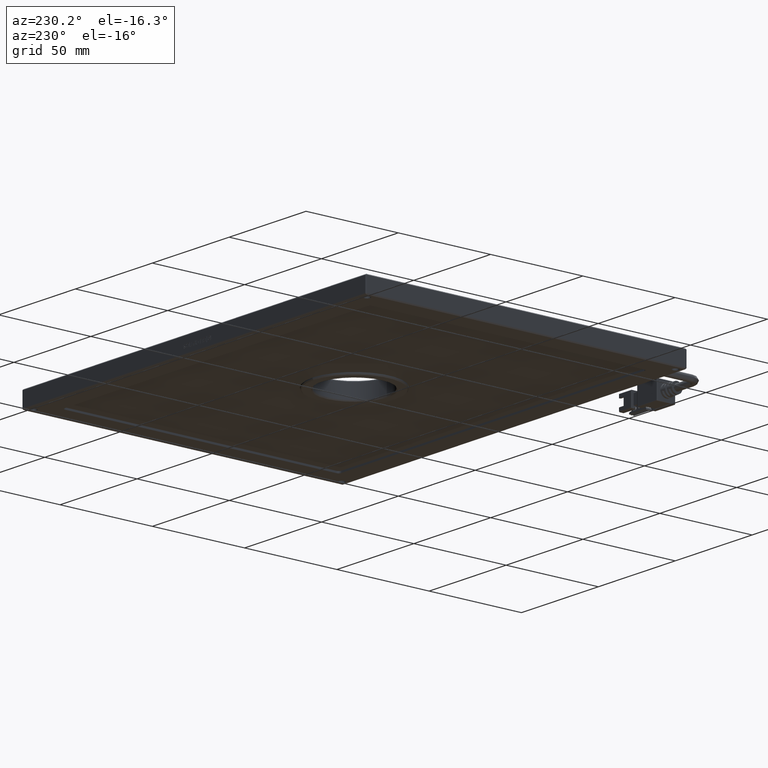
[diagram: clean part render]
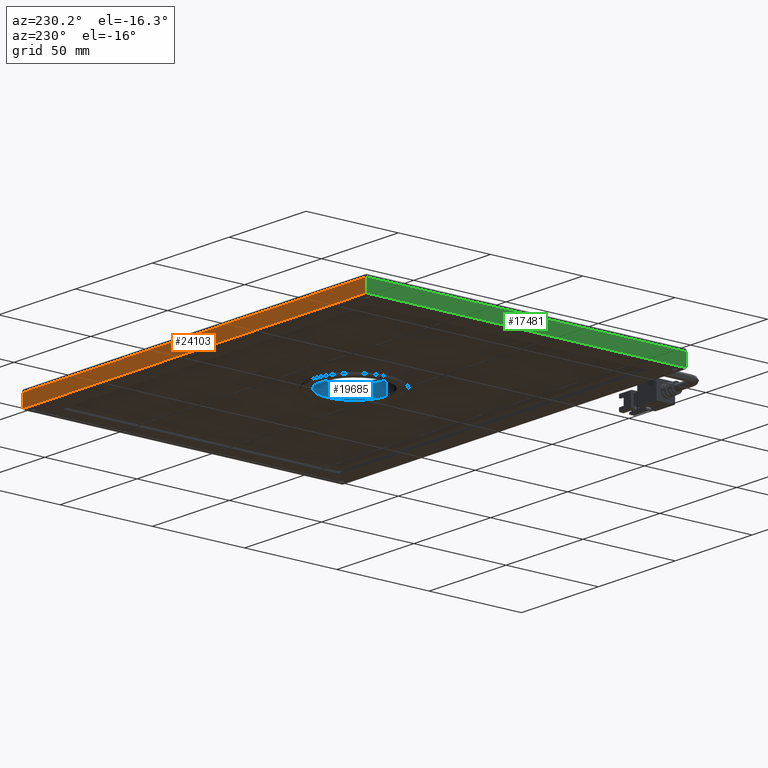
[diagram: same view with three faces highlighted in distinct colors, each labeled with its STEP entity id]
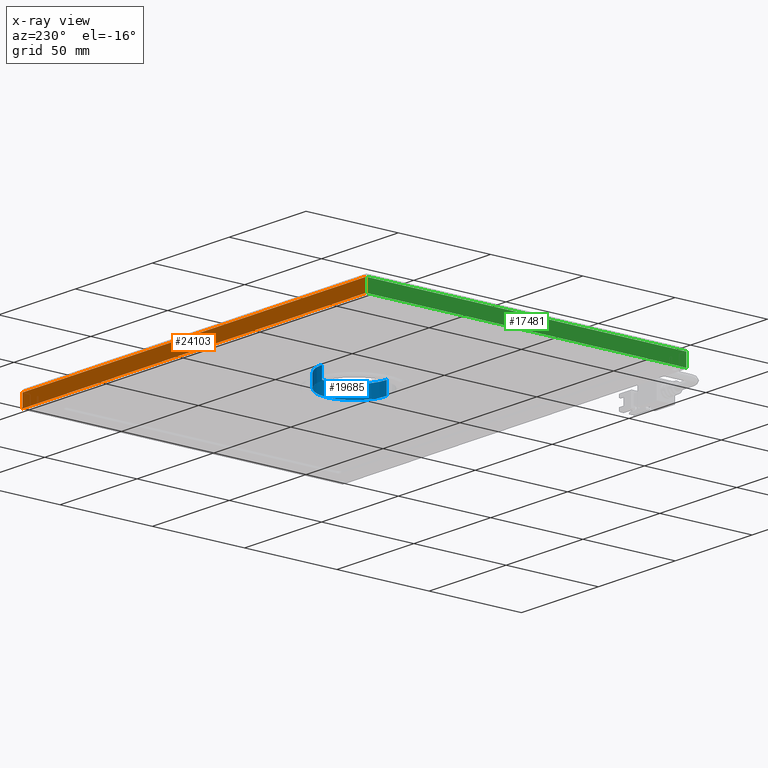
[diagram: x-ray of the same camera — body ghosted, the three highlighted faces saturated]
A machine part, auxiliary view with three faces highlighted in distinct colors.
The next image is the same camera in x-ray (body ghosted, the three faces saturated) — at least one of them is partly hidden behind the body in this view.
Their STEP definitions:

[orange] entity #24103 — the highlighted planar face has unit normal (0, -1, 0).
#21 = CARTESIAN_POINT ( 'NONE',  ( 8.527582477014572500, 92.19253164556964500, -0.9612854786857534300 ) ) ;
#23 = CARTESIAN_POINT ( 'NONE',  ( 5.851919956733342000, 92.19253164556964500, 0.5487469712872052900 ) ) ;
#42 = LINE ( 'NONE', #30165, #1252 ) ;
#53 = VECTOR ( 'NONE', #44394, 1000.000000000000000 ) ;
#56 = ORIENTED_EDGE ( 'NONE', *, *, #5942, .F. ) ;
#153 = CARTESIAN_POINT ( 'NONE',  ( -5.203948080043263100, 92.19253164556964500, 1.066486289837769400 ) ) ;
#160 = CARTESIAN_POINT ( 'NONE',  ( 4.521254732287705000, 92.19253164556964500, -0.9458717415305357700 ) ) ;
#380 = EDGE_CURVE ( 'NONE', #38261, #26939, #43110, .T. ) ;
#389 = ORIENTED_EDGE ( 'NONE', *, *, #6452, .F. ) ;
#404 = EDGE_CURVE ( 'NONE', #15630, #13072, #6326, .T. ) ;
#413 = ORIENTED_EDGE ( 'NONE', *, *, #7825, .F. ) ;
#429 = LINE ( 'NONE', #2855, #31126 ) ;
#448 = CARTESIAN_POINT ( 'NONE',  ( 8.140021633315342300, 92.19253164556964500, -0.1365694159491401500 ) ) ;
#539 = B_SPLINE_CURVE_WITH_KNOTS ( 'NONE', 3,
 ( #46776, #15445, #153, #31096 ),
 .UNSPECIFIED., .F., .F.,
 ( 4, 4 ),
 ( 11.00000000000000000, 12.00000000000000000 ),
 .UNSPECIFIED. ) ;
#557 = DIRECTION ( 'NONE',  ( -0.0000000000000000000, -0.0000000000000000000, -1.000000000000000000 ) ) ;
#698 = CARTESIAN_POINT ( 'NONE',  ( 2.872471606273685500, 92.19253164556964500, -0.9458717415305357700 ) ) ;
#778 = EDGE_CURVE ( 'NONE', #36559, #4296, #28587, .T. ) ;
#834 = CARTESIAN_POINT ( 'NONE',  ( -2.664142779880973600, 92.19253164556964500, 1.091337560795046200 ) ) ;
#859 = B_SPLINE_CURVE_WITH_KNOTS ( 'NONE', 3,
 ( #26742, #7529, #21, #19024 ),
 .UNSPECIFIED., .F., .F.,
 ( 4, 4 ),
 ( 6.000000000000000000, 7.000000000000000000 ),
 .UNSPECIFIED. ) ;
#955 = ORIENTED_EDGE ( 'NONE', *, *, #16744, .F. ) ;
#1223 = LINE ( 'NONE', #49845, #4246 ) ;
#1252 = VECTOR ( 'NONE', #13998, 1000.000000000000000 ) ;
#1399 = CARTESIAN_POINT ( 'NONE',  ( -3.080692266089757300, 92.19253164556964500, -0.9458717415305357700 ) ) ;
#1507 = B_SPLINE_CURVE_WITH_KNOTS ( 'NONE', 3,
 ( #49615, #49765, #14897, #42024 ),
 .UNSPECIFIED., .F., .F.,
 ( 4, 4 ),
 ( 8.000000000000000000, 9.000000000000000000 ),
 .UNSPECIFIED. ) ;
#1508 = CARTESIAN_POINT ( 'NONE',  ( 7.341644131963310100, 92.19253164556964500, 0.7192445375392387800 ) ) ;
#1514 = ORIENTED_EDGE ( 'NONE', *, *, #22287, .F. ) ;
#1517 = ORIENTED_EDGE ( 'NONE', *, *, #4423, .F. ) ;
#1520 = VECTOR ( 'NONE', #20639, 1000.000000000000000 ) ;
#1597 = VERTEX_POINT ( 'NONE', #6655 ) ;
#1634 = CARTESIAN_POINT ( 'NONE',  ( -3.774959437533864600, 92.19253164556964500, -0.3877322066468099100 ) ) ;
#1645 = VERTEX_POINT ( 'NONE', #34239 ) ;
#1651 = EDGE_CURVE ( 'NONE', #44302, #11119, #28240, .T. ) ;
#1719 = CARTESIAN_POINT ( 'NONE',  ( -6.567792430414609600, 92.19253164556964500, 1.506495181387633300 ) ) ;
#1753 = VERTEX_POINT ( 'NONE', #26153 ) ;
#1799 = LINE ( 'NONE', #44312, #19820 ) ;
#1804 = ORIENTED_EDGE ( 'NONE', *, *, #4338, .F. ) ;
#1898 = CARTESIAN_POINT ( 'NONE',  ( -4.156787452677113100, 92.19253164556964500, 0.5145933747485271800 ) ) ;
#1935 = CARTESIAN_POINT ( 'NONE',  ( 8.087993510005386400, 92.19253164556964500, -0.9737787182747225100 ) ) ;
#2027 = CARTESIAN_POINT ( 'NONE',  ( 7.555651703623600400, 92.19253164556964500, 0.6696772038453430200 ) ) ;
#2066 = CARTESIAN_POINT ( 'NONE',  ( -4.616711736073531500, 92.19253164556964500, -0.9737787182747225100 ) ) ;
#2102 = CARTESIAN_POINT ( 'NONE',  ( 3.905137912385059400, 92.19253164556964500, -0.6668019740886768100 ) ) ;
#2209 = B_SPLINE_CURVE_WITH_KNOTS ( 'NONE', 3,
 ( #20011, #36325, #20490, #9343 ),
 .UNSPECIFIED., .F., .F.,
 ( 4, 4 ),
 ( 13.00000000000000000, 14.00000000000000000 ),
 .UNSPECIFIED. ) ;
#2228 = LINE ( 'NONE', #41615, #14195 ) ;
#2476 = CARTESIAN_POINT ( 'NONE',  ( 8.903731746890187500, 92.19253164556964500, 0.4959887235857453100 ) ) ;
#2769 = ORIENTED_EDGE ( 'NONE', *, *, #35578, .F. ) ;
#2776 = ORIENTED_EDGE ( 'NONE', *, *, #44027, .F. ) ;
#2855 = CARTESIAN_POINT ( 'NONE',  ( 7.341644131963310100, 92.19253164556964500, 0.7192445375392387800 ) ) ;
#2890 = EDGE_LOOP ( 'NONE', ( #18330, #30151, #14193, #1517 ) ) ;
#2908 = EDGE_CURVE ( 'NONE', #44849, #25372, #1507, .T. ) ;
#2979 = EDGE_CURVE ( 'NONE', #49718, #49865, #17523, .T. ) ;
#3073 = CARTESIAN_POINT ( 'NONE',  ( 6.537479718766836500, 92.19253164556964500, -0.6854066252514655600 ) ) ;
#3169 = EDGE_LOOP ( 'NONE', ( #7911, #34347, #25892, #2776, #23446, #48038, #413, #47405 ) ) ;
#3266 = CARTESIAN_POINT ( 'NONE',  ( -6.567792430414609600, 92.19253164556964500, -1.476245085511220800 ) ) ;
#3339 = CARTESIAN_POINT ( 'NONE',  ( -8.821898187383547800, 92.19253164556964500, 1.506495181387633300 ) ) ;
#3519 = DIRECTION ( 'NONE',  ( -0.0000000000000000000, -0.0000000000000000000, -1.000000000000000000 ) ) ;
#3588 = CARTESIAN_POINT ( 'NONE',  ( 6.045646295294748300, 92.19253164556964500, 0.7968540561979686700 ) ) ;
#3606 = VERTEX_POINT ( 'NONE', #3266 ) ;
#3629 = CARTESIAN_POINT ( 'NONE',  ( -6.024010237157762400, 92.19253164556964500, -0.9324411337523945700 ) ) ;
#3783 = EDGE_CURVE ( 'NONE', #49928, #46685, #1223, .T. ) ;
#3814 = VECTOR ( 'NONE', #40390, 1000.000000000000000 ) ;
#3873 = CARTESIAN_POINT ( 'NONE',  ( 7.908599242833935800, 92.19253164556964500, -0.1737787182747177700 ) ) ;
#3972 = EDGE_CURVE ( 'NONE', #11256, #43657, #23408, .T. ) ;
#4036 = ORIENTED_EDGE ( 'NONE', *, *, #13265, .T. ) ;
#4176 = DIRECTION ( 'NONE',  ( -0.0000000000000000000, -0.0000000000000000000, 1.000000000000000000 ) ) ;
#4246 = VECTOR ( 'NONE', #11424, 1000.000000000000000 ) ;
#4257 = CARTESIAN_POINT ( 'NONE',  ( 7.385073012439180600, 92.19253164556964500, -0.4249415089723944700 ) ) ;
#4296 = VERTEX_POINT ( 'NONE', #38359 ) ;
#4298 = CARTESIAN_POINT ( 'NONE',  ( -109.1770253164557100, 92.19253164556964500, -3.250000000000002200 ) ) ;
#4338 = EDGE_CURVE ( 'NONE', #27743, #45834, #539, .T. ) ;
#4387 = LINE ( 'NONE', #2102, #41692 ) ;
#4423 = EDGE_CURVE ( 'NONE', #14231, #35535, #7877, .T. ) ;
#4462 = LINE ( 'NONE', #1898, #12225 ) ;
#4515 = CARTESIAN_POINT ( 'NONE',  ( 5.741914548404558600, 92.19253164556964500, -0.9365694159491387800 ) ) ;
#4527 = CARTESIAN_POINT ( 'NONE',  ( 1.995943753380191600, 92.19253164556964500, 0.3564538398648222600 ) ) ;
#4563 = ORIENTED_EDGE ( 'NONE', *, *, #13668, .F. ) ;
#4605 = CARTESIAN_POINT ( 'NONE',  ( 6.326338561384536900, 92.19253164556964500, 1.091337560795046200 ) ) ;
#4620 = VECTOR ( 'NONE', #18964, 1000.000000000000000 ) ;
#5028 = CARTESIAN_POINT ( 'NONE',  ( 0.0000000000000000000, 92.19253164556964500, 1.091337560795046200 ) ) ;
#5038 = EDGE_CURVE ( 'NONE', #18270, #12386, #26921, .T. ) ;
#5079 = CARTESIAN_POINT ( 'NONE',  ( -5.111357490535484200, 92.19253164556964500, -0.4124482693834289300 ) ) ;
#5160 = CARTESIAN_POINT ( 'NONE',  ( 8.478474851270956200, 92.19253164556964500, 0.3627004596592963700 ) ) ;
#5331 = CARTESIAN_POINT ( 'NONE',  ( 7.133423472147015300, 92.19253164556964500, -0.3133136019956581600 ) ) ;
#5337 = CARTESIAN_POINT ( 'NONE',  ( 8.649053542455320100, 92.19253164556964500, -0.03105292054621320400 ) ) ;
#5514 = CARTESIAN_POINT ( 'NONE',  ( 7.133423472147015300, 92.19253164556964500, -0.3133136019956581600 ) ) ;
#5760 = B_SPLINE_CURVE_WITH_KNOTS ( 'NONE', 3,
 ( #40327, #17190, #44153, #36570 ),
 .UNSPECIFIED., .F., .F.,
 ( 4, 4 ),
 ( 3.000000000000000000, 4.000000000000000000 ),
 .UNSPECIFIED. ) ;
#5785 = EDGE_LOOP ( 'NONE', ( #8821, #4036, #47991, #15838 ) ) ;
#5942 = EDGE_CURVE ( 'NONE', #42514, #12124, #15648, .T. ) ;
#6016 = ORIENTED_EDGE ( 'NONE', *, *, #16345, .F. ) ;
#6056 = B_SPLINE_CURVE_WITH_KNOTS ( 'NONE', 3,
 ( #49690, #26584, #30643, #7703 ),
 .UNSPECIFIED., .F., .F.,
 ( 4, 4 ),
 ( 9.000000000000000000, 10.00000000000000000 ),
 .UNSPECIFIED. ) ;
#6143 = LINE ( 'NONE', #35932, #35656 ) ;
#6326 = LINE ( 'NONE', #43898, #30439 ) ;
#6441 = CARTESIAN_POINT ( 'NONE',  ( 1.188912925905893900, 92.19253164556964500, 1.054128258469461600 ) ) ;
#6452 = EDGE_CURVE ( 'NONE', #13986, #26361, #6143, .T. ) ;
#6655 = CARTESIAN_POINT ( 'NONE',  ( 8.851649540292051200, 92.19253164556964500, -0.3505229043212357800 ) ) ;
#6659 = VERTEX_POINT ( 'NONE', #48921 ) ;
#6774 = LINE ( 'NONE', #15861, #29672 ) ;
#6859 = CARTESIAN_POINT ( 'NONE',  ( -8.462919309729644000, 92.19253164556964500, -1.476245085511220800 ) ) ;
#7001 = CARTESIAN_POINT ( 'NONE',  ( -3.497241752298485600, 92.19253164556964500, 0.2076166305624840600 ) ) ;
#7058 = VERTEX_POINT ( 'NONE', #25068 ) ;
#7168 = DIRECTION ( 'NONE',  ( -1.000000000000000000, -0.0000000000000000000, -0.0000000000000000000 ) ) ;
#7361 = EDGE_CURVE ( 'NONE', #1597, #28935, #859, .T. ) ;
#7403 = VECTOR ( 'NONE', #15935, 1000.000000000000000 ) ;
#7529 = CARTESIAN_POINT ( 'NONE',  ( 8.782206598161202700, 92.19253164556964500, -0.7535786101081501900 ) ) ;
#7532 = CARTESIAN_POINT ( 'NONE',  ( -9.006750428706244100, 92.19253164556964500, -1.182592908590303300 ) ) ;
#7611 = EDGE_CURVE ( 'NONE', #20985, #22576, #13973, .T. ) ;
#7626 = CARTESIAN_POINT ( 'NONE',  ( 1.995943753380191600, 92.19253164556964500, 0.3564538398648222600 ) ) ;
#7703 = CARTESIAN_POINT ( 'NONE',  ( 8.096646836127707300, 92.19253164556964500, -0.6854066252514655600 ) ) ;
#7783 = EDGE_CURVE ( 'NONE', #46113, #1753, #23593, .T. ) ;
#7825 = EDGE_CURVE ( 'NONE', #43113, #46569, #45294, .T. ) ;
#7877 = B_SPLINE_CURVE_WITH_KNOTS ( 'NONE', 3,
 ( #5028, #39360, #32088, #8327 ),
 .UNSPECIFIED., .F., .F.,
 ( 4, 4 ),
 ( 0.0000000000000000000, 1.000000000000000000 ),
 .UNSPECIFIED. ) ;
#7897 = CARTESIAN_POINT ( 'NONE',  ( 2.872471606273685500, 92.19253164556964500, -0.6668019740886768100 ) ) ;
#7911 = ORIENTED_EDGE ( 'NONE', *, *, #21070, .F. ) ;
#8023 = CARTESIAN_POINT ( 'NONE',  ( -4.362195781503597700, 92.19253164556964500, 0.8278167387290652500 ) ) ;
#8051 = ORIENTED_EDGE ( 'NONE', *, *, #28784, .F. ) ;
#8064 = CARTESIAN_POINT ( 'NONE',  ( 6.326338561384536900, 92.19253164556964500, 1.091337560795046200 ) ) ;
#8078 = CARTESIAN_POINT ( 'NONE',  ( 4.764250946457549300, 92.19253164556964500, -0.9458717415305357700 ) ) ;
#8123 = CARTESIAN_POINT ( 'NONE',  ( -5.545267712276979600, 92.19253164556964500, 0.04947709567876181600 ) ) ;
#8139 = DIRECTION ( 'NONE',  ( -0.0000000000000000000, -0.0000000000000000000, 1.000000000000000000 ) ) ;
#8153 = CARTESIAN_POINT ( 'NONE',  ( 2.322974683544309900, 92.19253164556964500, 3.750000000000000000 ) ) ;
#8327 = CARTESIAN_POINT ( 'NONE',  ( 0.9285559762032824500, 92.19253164556964500, 0.06808174684155757200 ) ) ;
#8358 = CARTESIAN_POINT ( 'NONE',  ( 7.089994591671199900, 92.19253164556964500, 0.7564538398648164000 ) ) ;
#8366 = CARTESIAN_POINT ( 'NONE',  ( -4.581990265008162300, 92.19253164556964500, 0.8215701189345876500 ) ) ;
#8477 = DIRECTION ( 'NONE',  ( 1.000000000000000000, -0.0000000000000000000, -0.0000000000000000000 ) ) ;
#8542 = B_SPLINE_CURVE_WITH_KNOTS ( 'NONE', 3,
 ( #42492, #14863, #41822, #11472 ),
 .UNSPECIFIED., .F., .F.,
 ( 4, 4 ),
 ( 1.000000000000000000, 2.000000000000000000 ),
 .UNSPECIFIED. ) ;
#8724 = B_SPLINE_CURVE_WITH_KNOTS ( 'NONE', 3,
 ( #8064, #31333, #27614, #12625 ),
 .UNSPECIFIED., .F., .F.,
 ( 4, 4 ),
 ( 6.000000000000000000, 7.000000000000000000 ),
 .UNSPECIFIED. ) ;
#8732 = CARTESIAN_POINT ( 'NONE',  ( 8.079286100594940100, 92.19253164556964500, 0.8308724445159785300 ) ) ;
#8791 = CARTESIAN_POINT ( 'NONE',  ( 8.122714981070867400, 92.19253164556964500, 0.2169189561438819300 ) ) ;
#8821 = ORIENTED_EDGE ( 'NONE', *, *, #28474, .F. ) ;
#8860 = B_SPLINE_CURVE_WITH_KNOTS ( 'NONE', 3,
 ( #22560, #15308, #22720, #15479 ),
 .UNSPECIFIED., .F., .F.,
 ( 4, 4 ),
 ( 4.000000000000000000, 5.000000000000000000 ),
 .UNSPECIFIED. ) ;
#8870 = CARTESIAN_POINT ( 'NONE',  ( -4.616711736073531500, 92.19253164556964500, -0.6947089508328565500 ) ) ;
#8918 = VERTEX_POINT ( 'NONE', #18462 ) ;
#9059 = EDGE_CURVE ( 'NONE', #23303, #19269, #28667, .T. ) ;
#9188 = VERTEX_POINT ( 'NONE', #5331 ) ;
#9333 = DIRECTION ( 'NONE',  ( -0.0000000000000000000, -0.0000000000000000000, -1.000000000000000000 ) ) ;
#9343 = CARTESIAN_POINT ( 'NONE',  ( -4.616711736073531500, 92.19253164556964500, -0.9737787182747225100 ) ) ;
#9411 = CARTESIAN_POINT ( 'NONE',  ( 7.402433747971892700, 92.19253164556964500, -0.7845412926392433300 ) ) ;
#9476 = ORIENTED_EDGE ( 'NONE', *, *, #42030, .F. ) ;
#9548 = CARTESIAN_POINT ( 'NONE',  ( -3.497241752298485600, 92.19253164556964500, 0.2076166305624840600 ) ) ;
#9559 = B_SPLINE_CURVE_WITH_KNOTS ( 'NONE', 3,
 ( #8791, #12681, #5160, #20912 ),
 .UNSPECIFIED., .F., .F.,
 ( 4, 4 ),
 ( 3.000000000000000000, 4.000000000000000000 ),
 .UNSPECIFIED. ) ;
#9615 = CARTESIAN_POINT ( 'NONE',  ( 8.140021633315342300, 92.19253164556964500, -0.1365694159491401500 ) ) ;
#9733 = CARTESIAN_POINT ( 'NONE',  ( 6.893239588967037300, 92.19253164556964500, 0.6852261492212219400 ) ) ;
#9788 = CARTESIAN_POINT ( 'NONE',  ( -6.024010237157762400, 92.19253164556964500, 1.321615754439154200 ) ) ;
#9808 = EDGE_CURVE ( 'NONE', #8918, #14231, #19848, .T. ) ;
#9821 = VECTOR ( 'NONE', #13017, 1000.000000000000000 ) ;
#9858 = ORIENTED_EDGE ( 'NONE', *, *, #20519, .F. ) ;
#9951 = DIRECTION ( 'NONE',  ( -0.0000000000000000000, -0.0000000000000000000, 1.000000000000000000 ) ) ;
#9955 = EDGE_CURVE ( 'NONE', #22739, #18270, #35680, .T. ) ;
#10036 = LINE ( 'NONE', #13574, #48643 ) ;
#10096 = VECTOR ( 'NONE', #16989, 1000.000000000000000 ) ;
#10152 = CARTESIAN_POINT ( 'NONE',  ( -6.024010237157762400, 92.19253164556964500, -0.9324411337523945700 ) ) ;
#10248 = CARTESIAN_POINT ( 'NONE',  ( -0.9285559762033379600, 92.19253164556964500, 0.06808174684155757200 ) ) ;
#10435 = FACE_BOUND ( 'NONE', #3169, .T. ) ;
#10680 = EDGE_CURVE ( 'NONE', #22958, #46113, #40643, .T. ) ;
#10749 = CARTESIAN_POINT ( 'NONE',  ( 8.339643050297496500, 92.19253164556964500, 0.8308724445159785300 ) ) ;
#10752 = CARTESIAN_POINT ( 'NONE',  ( 5.840346133044905100, 92.19253164556964500, 0.07738407242295544700 ) ) ;
#10761 = LINE ( 'NONE', #15836, #28825 ) ;
#10910 = CARTESIAN_POINT ( 'NONE',  ( 8.472633856138500600, 92.19253164556964500, 0.7285468631206296600 ) ) ;
#11043 = CARTESIAN_POINT ( 'NONE',  ( -109.1770253164556800, 92.19253164556964500, 3.750000000000000000 ) ) ;
#11080 = EDGE_CURVE ( 'NONE', #42216, #28066, #21804, .T. ) ;
#11119 = VERTEX_POINT ( 'NONE', #31302 ) ;
#11163 = VECTOR ( 'NONE', #11237, 1000.000000000000000 ) ;
#11231 = EDGE_CURVE ( 'NONE', #15754, #28597, #23072, .T. ) ;
#11233 = EDGE_CURVE ( 'NONE', #43657, #20985, #8542, .T. ) ;
#11237 = DIRECTION ( 'NONE',  ( -0.0000000000000000000, -0.0000000000000000000, -1.000000000000000000 ) ) ;
#11256 = VERTEX_POINT ( 'NONE', #18907 ) ;
#11360 = CARTESIAN_POINT ( 'NONE',  ( 7.798593834505151500, 92.19253164556964500, -0.2698576798755890600 ) ) ;
#11424 = DIRECTION ( 'NONE',  ( -0.0000000000000000000, -0.0000000000000000000, 1.000000000000000000 ) ) ;
#11472 = CARTESIAN_POINT ( 'NONE',  ( -4.208815575987068200, 92.19253164556964500, -0.3877322066468099100 ) ) ;
#11602 = EDGE_LOOP ( 'NONE', ( #955, #45732, #49274, #39736 ) ) ;
#11634 = CARTESIAN_POINT ( 'NONE',  ( 2.672850189291531300, 92.19253164556964500, -0.2947089508328624200 ) ) ;
#11794 = CARTESIAN_POINT ( 'NONE',  ( -2.230232558139588800, 92.19253164556964500, 0.3099422119578294500 ) ) ;
#11820 = CARTESIAN_POINT ( 'NONE',  ( -4.712168739859301100, 92.19253164556964500, 0.1797096538183043100 ) ) ;
#11873 = EDGE_LOOP ( 'NONE', ( #31986, #30686, #389, #16828, #8051, #42415, #25414, #30168 ) ) ;
#12124 = VERTEX_POINT ( 'NONE', #24030 ) ;
#12225 = VECTOR ( 'NONE', #32648, 1000.000000000000000 ) ;
#12230 = VECTOR ( 'NONE', #34139, 1000.000000000000000 ) ;
#12273 = CARTESIAN_POINT ( 'NONE',  ( 8.654894537587887600, 92.19253164556964500, 1.091337560795046200 ) ) ;
#12357 = ORIENTED_EDGE ( 'NONE', *, *, #404, .F. ) ;
#12386 = VERTEX_POINT ( 'NONE', #18951 ) ;
#12620 = B_SPLINE_CURVE_WITH_KNOTS ( 'NONE', 3,
 ( #10152, #45195, #14207, #21615 ),
 .UNSPECIFIED., .F., .F.,
 ( 4, 4 ),
 ( 3.000000000000000000, 4.000000000000000000 ),
 .UNSPECIFIED. ) ;
#12625 = CARTESIAN_POINT ( 'NONE',  ( 7.089994591671199900, 92.19253164556964500, 0.7564538398648164000 ) ) ;
#12681 = CARTESIAN_POINT ( 'NONE',  ( 8.359870200108254300, 92.19253164556964500, 0.2603748782639475100 ) ) ;
#12748 = CARTESIAN_POINT ( 'NONE',  ( 8.140021633315342300, 92.19253164556964500, 1.091337560795046200 ) ) ;
#12756 = CARTESIAN_POINT ( 'NONE',  ( -3.766252028123362500, 92.19253164556964500, -0.09936011362356253500 ) ) ;
#12770 = ORIENTED_EDGE ( 'NONE', *, *, #778, .F. ) ;
#12799 = CARTESIAN_POINT ( 'NONE',  ( -9.006750428706244100, 92.19253164556964500, 0.9626857934374446500 ) ) ;
#12895 = CARTESIAN_POINT ( 'NONE',  ( 1.596755002704175500, 92.19253164556964500, 1.054128258469461600 ) ) ;
#13017 = DIRECTION ( 'NONE',  ( -0.0000000000000000000, -0.0000000000000000000, 1.000000000000000000 ) ) ;
#13072 = VERTEX_POINT ( 'NONE', #1399 ) ;
#13132 = EDGE_CURVE ( 'NONE', #49865, #27280, #49787, .T. ) ;
#13162 = CARTESIAN_POINT ( 'NONE',  ( -6.208916840391099300, 92.19253164556964500, 1.506495181387633300 ) ) ;
#13254 = CARTESIAN_POINT ( 'NONE',  ( 7.341644131963310100, 92.19253164556964500, 0.7192445375392387800 ) ) ;
#13265 = EDGE_CURVE ( 'NONE', #40112, #39376, #2228, .T. ) ;
#13495 = ORIENTED_EDGE ( 'NONE', *, *, #48321, .F. ) ;
#13574 = CARTESIAN_POINT ( 'NONE',  ( 1.596755002704175500, 92.19253164556964500, 0.3564538398648222600 ) ) ;
#13668 = EDGE_CURVE ( 'NONE', #30956, #49928, #34594, .T. ) ;
#13781 = CARTESIAN_POINT ( 'NONE',  ( 6.334991887506690800, 92.19253164556964500, -0.6854066252514655600 ) ) ;
#13973 = LINE ( 'NONE', #24667, #3814 ) ;
#13986 = VERTEX_POINT ( 'NONE', #33797 ) ;
#13998 = DIRECTION ( 'NONE',  ( 0.0000000000000000000, -0.0000000000000000000, -1.000000000000000000 ) ) ;
#14193 = ORIENTED_EDGE ( 'NONE', *, *, #23568, .F. ) ;
#14195 = VECTOR ( 'NONE', #18192, 1000.000000000000000 ) ;
#14207 = CARTESIAN_POINT ( 'NONE',  ( -6.208916840391099300, 92.19253164556964500, -1.476245085511220800 ) ) ;
#14210 = LINE ( 'NONE', #20526, #49180 ) ;
#14231 = VERTEX_POINT ( 'NONE', #19978 ) ;
#14540 = DIRECTION ( 'NONE',  ( 1.000000000000000000, -0.0000000000000000000, -0.0000000000000000000 ) ) ;
#14704 = CARTESIAN_POINT ( 'NONE',  ( 1.188912925905893900, 92.19253164556964500, -0.9458717415305357700 ) ) ;
#14863 = CARTESIAN_POINT ( 'NONE',  ( -4.408436992969222400, 92.19253164556964500, -0.6947089508328565500 ) ) ;
#14880 = VERTEX_POINT ( 'NONE', #43325 ) ;
#14897 = CARTESIAN_POINT ( 'NONE',  ( 8.388750676041056000, 92.19253164556964500, -0.5675320984802343400 ) ) ;
#14931 = CARTESIAN_POINT ( 'NONE',  ( 7.040778799351055100, 92.19253164556964500, -0.7473319903136587100 ) ) ;
#14946 = CARTESIAN_POINT ( 'NONE',  ( -4.156787452677113100, 92.19253164556964500, 0.1797096538183043100 ) ) ;
#14947 = ORIENTED_EDGE ( 'NONE', *, *, #23531, .F. ) ;
#14991 = EDGE_CURVE ( 'NONE', #31772, #38261, #1799, .T. ) ;
#15233 = CARTESIAN_POINT ( 'NONE',  ( -9.006750428706244100, 92.19253164556964500, 0.9626857934374446500 ) ) ;
#15271 = CARTESIAN_POINT ( 'NONE',  ( 6.308977825851769700, 92.19253164556964500, -0.9737787182747225100 ) ) ;
#15308 = CARTESIAN_POINT ( 'NONE',  ( 7.344510546241189700, 92.19253164556964500, -0.09005778804216466000 ) ) ;
#15310 = CARTESIAN_POINT ( 'NONE',  ( -8.462919309729644000, 92.19253164556964500, -1.476245085511220800 ) ) ;
#15413 = ORIENTED_EDGE ( 'NONE', *, *, #11231, .F. ) ;
#15423 = CARTESIAN_POINT ( 'NONE',  ( 8.140021633315342300, 92.19253164556964500, -0.1365694159491401500 ) ) ;
#15445 = CARTESIAN_POINT ( 'NONE',  ( -5.522228231476522500, 92.19253164556964500, 0.7192445375392387800 ) ) ;
#15479 = CARTESIAN_POINT ( 'NONE',  ( 8.122714981070867400, 92.19253164556964500, 0.2169189561438819300 ) ) ;
#15630 = VERTEX_POINT ( 'NONE', #35852 ) ;
#15648 = B_SPLINE_CURVE_WITH_KNOTS ( 'NONE', 3,
 ( #19844, #42927, #39401, #20166 ),
 .UNSPECIFIED., .F., .F.,
 ( 4, 4 ),
 ( 8.000000000000000000, 9.000000000000000000 ),
 .UNSPECIFIED. ) ;
#15707 = CARTESIAN_POINT ( 'NONE',  ( -2.230232558139588800, 92.19253164556964500, -0.9458717415305357700 ) ) ;
#15754 = VERTEX_POINT ( 'NONE', #28607 ) ;
#15827 = VERTEX_POINT ( 'NONE', #22194 ) ;
#15836 = CARTESIAN_POINT ( 'NONE',  ( 5.172147106544011700, 92.19253164556964500, -0.9458717415305357700 ) ) ;
#15838 = ORIENTED_EDGE ( 'NONE', *, *, #31947, .F. ) ;
#15859 = FACE_BOUND ( 'NONE', #45881, .T. ) ;
#15861 = CARTESIAN_POINT ( 'NONE',  ( 1.188912925905893900, 92.19253164556964500, -0.9458717415305357700 ) ) ;
#15935 = DIRECTION ( 'NONE',  ( -1.000000000000000000, -0.0000000000000000000, 0.0000000000000000000 ) ) ;
#16279 = ORIENTED_EDGE ( 'NONE', *, *, #2979, .F. ) ;
#16325 = VERTEX_POINT ( 'NONE', #45380 ) ;
#16345 = EDGE_CURVE ( 'NONE', #12386, #42152, #429, .T. ) ;
#16474 = DIRECTION ( 'NONE',  ( -0.0000000000000000000, -0.0000000000000000000, -1.000000000000000000 ) ) ;
#16506 = B_SPLINE_CURVE_WITH_KNOTS ( 'NONE', 3,
 ( #15310, #19026, #7532, #22891 ),
 .UNSPECIFIED., .F., .F.,
 ( 4, 4 ),
 ( 1.000000000000000000, 2.000000000000000000 ),
 .UNSPECIFIED. ) ;
#16520 = CARTESIAN_POINT ( 'NONE',  ( -4.156787452677113100, 92.19253164556964500, 1.091337560795046200 ) ) ;
#16646 = B_SPLINE_CURVE_WITH_KNOTS ( 'NONE', 3,
 ( #1935, #21396, #9411, #43975 ),
 .UNSPECIFIED., .F., .F.,
 ( 4, 4 ),
 ( 5.000000000000000000, 6.000000000000000000 ),
 .UNSPECIFIED. ) ;
#16743 = VERTEX_POINT ( 'NONE', #9548 ) ;
#16744 = EDGE_CURVE ( 'NONE', #19902, #22958, #30507, .T. ) ;
#16769 = VERTEX_POINT ( 'NONE', #1719 ) ;
#16803 = CARTESIAN_POINT ( 'NONE',  ( 7.538290968090888300, 92.19253164556964500, 0.9858210653921296600 ) ) ;
#16805 = CARTESIAN_POINT ( 'NONE',  ( 6.725527312060553000, 92.19253164556964500, -0.3133136019956581600 ) ) ;
#16820 = EDGE_CURVE ( 'NONE', #45040, #36254, #14210, .T. ) ;
#16828 = ORIENTED_EDGE ( 'NONE', *, *, #24861, .F. ) ;
#16835 = EDGE_CURVE ( 'NONE', #27562, #27743, #39566, .T. ) ;
#16898 = EDGE_CURVE ( 'NONE', #26361, #31772, #25592, .T. ) ;
#16989 = DIRECTION ( 'NONE',  ( -1.000000000000000000, -0.0000000000000000000, -0.0000000000000000000 ) ) ;
#17144 = DIRECTION ( 'NONE',  ( -0.0000000000000000000, 0.0000000000000000000, 1.000000000000000000 ) ) ;
#17190 = CARTESIAN_POINT ( 'NONE',  ( -4.929096809086097200, 92.19253164556964500, 0.7906074364034771900 ) ) ;
#17262 = CARTESIAN_POINT ( 'NONE',  ( -3.497241752298485600, 92.19253164556964500, -0.9458717415305357700 ) ) ;
#17293 = CARTESIAN_POINT ( 'NONE',  ( -5.128718226068251300, 92.19253164556964500, 0.05877942126015969100 ) ) ;
#17384 = CARTESIAN_POINT ( 'NONE',  ( 1.188912925905893900, 92.19253164556964500, 1.054128258469461600 ) ) ;
#17523 = LINE ( 'NONE', #20081, #35622 ) ;
#17629 = VECTOR ( 'NONE', #17144, 1000.000000000000000 ) ;
#17690 = ORIENTED_EDGE ( 'NONE', *, *, #2908, .F. ) ;
#17741 = DIRECTION ( 'NONE',  ( 1.000000000000000000, -0.0000000000000000000, -0.0000000000000000000 ) ) ;
#17762 = DIRECTION ( 'NONE',  ( -0.0000000000000000000, -0.0000000000000000000, 1.000000000000000000 ) ) ;
#17835 = CARTESIAN_POINT ( 'NONE',  ( -2.655489453758819200, 92.19253164556964500, 0.8215701189345876500 ) ) ;
#17839 = CARTESIAN_POINT ( 'NONE',  ( 6.421795565170418400, 92.19253164556964500, 0.8215701189345876500 ) ) ;
#17845 = EDGE_CURVE ( 'NONE', #39226, #45040, #44720, .T. ) ;
#17860 = ORIENTED_EDGE ( 'NONE', *, *, #7361, .F. ) ;
#17863 = ORIENTED_EDGE ( 'NONE', *, *, #26535, .F. ) ;
#17877 = ORIENTED_EDGE ( 'NONE', *, *, #36143, .F. ) ;
#17944 = CARTESIAN_POINT ( 'NONE',  ( -4.208815575987068200, 92.19253164556964500, -0.3877322066468099100 ) ) ;
#18192 = DIRECTION ( 'NONE',  ( -1.000000000000000000, -0.0000000000000000000, -0.0000000000000000000 ) ) ;
#18266 = EDGE_CURVE ( 'NONE', #45834, #42216, #27582, .T. ) ;
#18270 = VERTEX_POINT ( 'NONE', #8732 ) ;
#18330 = ORIENTED_EDGE ( 'NONE', *, *, #9808, .F. ) ;
#18391 = ORIENTED_EDGE ( 'NONE', *, *, #38375, .F. ) ;
#18434 = CARTESIAN_POINT ( 'NONE',  ( -9.006750428706244100, 92.19253164556964500, 1.321615754439154200 ) ) ;
#18462 = CARTESIAN_POINT ( 'NONE',  ( -0.9285559762033379600, 92.19253164556964500, 0.06808174684155757200 ) ) ;
#18519 = CARTESIAN_POINT ( 'NONE',  ( 6.421795565170418400, 92.19253164556964500, 0.8215701189345876500 ) ) ;
#18585 = VECTOR ( 'NONE', #24508, 1000.000000000000000 ) ;
#18725 = CARTESIAN_POINT ( 'NONE',  ( -3.766252028123362500, 92.19253164556964500, -0.09936011362356253500 ) ) ;
#18804 = CARTESIAN_POINT ( 'NONE',  ( 6.765927528393723000, 92.19253164556964500, -0.9675320984802310300 ) ) ;
#18894 = EDGE_CURVE ( 'NONE', #37912, #9188, #48708, .T. ) ;
#18907 = CARTESIAN_POINT ( 'NONE',  ( -5.128718226068251300, 92.19253164556964500, 0.05877942126015969100 ) ) ;
#18951 = CARTESIAN_POINT ( 'NONE',  ( 7.341644131963310100, 92.19253164556964500, 0.3657561654462097600 ) ) ;
#18964 = DIRECTION ( 'NONE',  ( -0.0000000000000000000, -0.0000000000000000000, 1.000000000000000000 ) ) ;
#19024 = CARTESIAN_POINT ( 'NONE',  ( 8.087993510005386400, 92.19253164556964500, -0.9737787182747225100 ) ) ;
#19026 = CARTESIAN_POINT ( 'NONE',  ( -8.821898187383547800, 92.19253164556964500, -1.476245085511220800 ) ) ;
#19269 = VERTEX_POINT ( 'NONE', #7626 ) ;
#19383 = VECTOR ( 'NONE', #16474, 1000.000000000000000 ) ;
#19533 = CARTESIAN_POINT ( 'NONE',  ( 8.903731746890187500, 92.19253164556964500, 0.4959887235857453100 ) ) ;
#19542 = LINE ( 'NONE', #42722, #48492 ) ;
#19692 = CARTESIAN_POINT ( 'NONE',  ( 8.140021633315342300, 92.19253164556964500, 1.091337560795046200 ) ) ;
#19794 = EDGE_CURVE ( 'NONE', #38011, #6659, #39249, .T. ) ;
#19820 = VECTOR ( 'NONE', #47537, 1000.000000000000000 ) ;
#19844 = CARTESIAN_POINT ( 'NONE',  ( -2.664142779880973600, 92.19253164556964500, 1.091337560795046200 ) ) ;
#19848 = B_SPLINE_CURVE_WITH_KNOTS ( 'NONE', 3,
 ( #10248, #25565, #48507, #24891 ),
 .UNSPECIFIED., .F., .F.,
 ( 4, 4 ),
 ( 1.000000000000000000, 2.000000000000000000 ),
 .UNSPECIFIED. ) ;
#19861 = ORIENTED_EDGE ( 'NONE', *, *, #20721, .F. ) ;
#19866 = ORIENTED_EDGE ( 'NONE', *, *, #28490, .F. ) ;
#19902 = VERTEX_POINT ( 'NONE', #45343 ) ;
#19978 = CARTESIAN_POINT ( 'NONE',  ( 0.0000000000000000000, 92.19253164556964500, 1.091337560795046200 ) ) ;
#20011 = CARTESIAN_POINT ( 'NONE',  ( -3.774959437533864600, 92.19253164556964500, -0.3877322066468099100 ) ) ;
#20026 = CARTESIAN_POINT ( 'NONE',  ( 8.909410492157876500, 92.19253164556964500, 0.8927978095781716700 ) ) ;
#20081 = CARTESIAN_POINT ( 'NONE',  ( -4.712168739859301100, 92.19253164556964500, 0.1797096538183043100 ) ) ;
#20162 = ORIENTED_EDGE ( 'NONE', *, *, #43661, .F. ) ;
#20166 = CARTESIAN_POINT ( 'NONE',  ( -1.813683071930805000, 92.19253164556964500, 0.1890119793997021800 ) ) ;
#20231 = EDGE_CURVE ( 'NONE', #16325, #44302, #24331, .T. ) ;
#20317 = DIRECTION ( 'NONE',  ( -1.000000000000000000, -0.0000000000000000000, -0.0000000000000000000 ) ) ;
#20323 = CARTESIAN_POINT ( 'NONE',  ( 8.140021633315342300, 92.19253164556964500, 1.091337560795046200 ) ) ;
#20386 = CARTESIAN_POINT ( 'NONE',  ( 6.326338561384536900, 92.19253164556964500, 1.091337560795046200 ) ) ;
#20453 = ORIENTED_EDGE ( 'NONE', *, *, #27600, .F. ) ;
#20471 = LINE ( 'NONE', #21133, #53 ) ;
#20490 = CARTESIAN_POINT ( 'NONE',  ( -4.182801514332146200, 92.19253164556964500, -0.9737787182747225100 ) ) ;
#20519 = EDGE_CURVE ( 'NONE', #46685, #49610, #46658, .T. ) ;
#20526 = CARTESIAN_POINT ( 'NONE',  ( 1.596755002704175500, 92.19253164556964500, 1.054128258469461600 ) ) ;
#20538 = CARTESIAN_POINT ( 'NONE',  ( -3.080692266089757300, 92.19253164556964500, 0.6510725526825541500 ) ) ;
#20589 = CARTESIAN_POINT ( 'NONE',  ( -6.024010237157762400, 92.19253164556964500, 0.9626857934374446500 ) ) ;
#20611 = VECTOR ( 'NONE', #14540, 1000.000000000000000 ) ;
#20639 = DIRECTION ( 'NONE',  ( -0.0000000000000000000, -0.0000000000000000000, 1.000000000000000000 ) ) ;
#20668 = FACE_BOUND ( 'NONE', #42568, .T. ) ;
#20669 = CARTESIAN_POINT ( 'NONE',  ( 0.5784748512709381200, 92.19253164556964500, -0.9365694159491387800 ) ) ;
#20721 = EDGE_CURVE ( 'NONE', #34867, #47638, #8860, .T. ) ;
#20799 = ORIENTED_EDGE ( 'NONE', *, *, #34702, .F. ) ;
#20847 = ORIENTED_EDGE ( 'NONE', *, *, #13132, .F. ) ;
#20912 = CARTESIAN_POINT ( 'NONE',  ( 8.478474851270956200, 92.19253164556964500, 0.5238957003299250500 ) ) ;
#20985 = VERTEX_POINT ( 'NONE', #17944 ) ;
#21055 = VERTEX_POINT ( 'NONE', #17262 ) ;
#21070 = EDGE_CURVE ( 'NONE', #11119, #16769, #20471, .T. ) ;
#21133 = CARTESIAN_POINT ( 'NONE',  ( -6.567792430414609600, 92.19253164556964500, 1.506495181387633300 ) ) ;
#21137 = CARTESIAN_POINT ( 'NONE',  ( 2.872471606273685500, 92.19253164556964500, -0.6668019740886768100 ) ) ;
#21162 = CARTESIAN_POINT ( 'NONE',  ( 113.8229746835443400, 92.19253164556964500, -3.250000000000001300 ) ) ;
#21211 = CARTESIAN_POINT ( 'NONE',  ( 7.089994591671199900, 92.19253164556964500, 0.3750584910276006900 ) ) ;
#21246 = LINE ( 'NONE', #30195, #20611 ) ;
#21267 = CARTESIAN_POINT ( 'NONE',  ( 6.010924824229269000, 92.19253164556964500, -0.6729133856624965900 ) ) ;
#21396 = CARTESIAN_POINT ( 'NONE',  ( 7.636722552731233900, 92.19253164556964500, -0.9675320984802310300 ) ) ;
#21615 = CARTESIAN_POINT ( 'NONE',  ( -6.567792430414609600, 92.19253164556964500, -1.476245085511220800 ) ) ;
#21735 = CARTESIAN_POINT ( 'NONE',  ( 1.596755002704175500, 92.19253164556964500, 0.3564538398648222600 ) ) ;
#21804 = LINE ( 'NONE', #12756, #19383 ) ;
#21808 = ORIENTED_EDGE ( 'NONE', *, *, #9955, .F. ) ;
#21875 = LINE ( 'NONE', #8153, #7403 ) ;
#21940 = EDGE_CURVE ( 'NONE', #36254, #23303, #10036, .T. ) ;
#22046 = CARTESIAN_POINT ( 'NONE',  ( -5.212655489453710300, 92.19253164556964500, -0.9426808275229646700 ) ) ;
#22048 = VECTOR ( 'NONE', #24720, 1000.000000000000000 ) ;
#22194 = CARTESIAN_POINT ( 'NONE',  ( 0.0000000000000000000, 92.19253164556964500, -0.9737787182747225100 ) ) ;
#22287 = EDGE_CURVE ( 'NONE', #9188, #36559, #43418, .T. ) ;
#22407 = EDGE_CURVE ( 'NONE', #21055, #16743, #19542, .T. ) ;
#22499 = CARTESIAN_POINT ( 'NONE',  ( -3.236884802595929600, 92.19253164556964500, 1.109942211957835000 ) ) ;
#22560 = CARTESIAN_POINT ( 'NONE',  ( 7.385073012439180600, 92.19253164556964500, -0.4249415089723944700 ) ) ;
#22576 = VERTEX_POINT ( 'NONE', #1634 ) ;
#22621 = LINE ( 'NONE', #6859, #41924 ) ;
#22720 = CARTESIAN_POINT ( 'NONE',  ( 7.590319091400676400, 92.19253164556964500, 0.1238957003299309400 ) ) ;
#22734 = B_SPLINE_CURVE_WITH_KNOTS ( 'NONE', 3,
 ( #19692, #12273, #20026, #19533 ),
 .UNSPECIFIED., .F., .F.,
 ( 4, 4 ),
 ( 12.00000000000000000, 13.00000000000000000 ),
 .UNSPECIFIED. ) ;
#22739 = VERTEX_POINT ( 'NONE', #41015 ) ;
#22891 = CARTESIAN_POINT ( 'NONE',  ( -9.006750428706244100, 92.19253164556964500, -0.8236901285447817400 ) ) ;
#22937 = ORIENTED_EDGE ( 'NONE', *, *, #38306, .F. ) ;
#22958 = VERTEX_POINT ( 'NONE', #8078 ) ;
#23072 = B_SPLINE_CURVE_WITH_KNOTS ( 'NONE', 3,
 ( #11634, #46027, #49582, #41991 ),
 .UNSPECIFIED., .F., .F.,
 ( 4, 4 ),
 ( 5.000000000000000000, 6.000000000000000000 ),
 .UNSPECIFIED. ) ;
#23140 = EDGE_CURVE ( 'NONE', #28935, #34867, #16646, .T. ) ;
#23273 = B_SPLINE_CURVE_WITH_KNOTS ( 'NONE', 3,
 ( #18519, #3588, #23, #10752 ),
 .UNSPECIFIED., .F., .F.,
 ( 4, 4 ),
 ( 3.000000000000000000, 4.000000000000000000 ),
 .UNSPECIFIED. ) ;
#23303 = VERTEX_POINT ( 'NONE', #21735 ) ;
#23407 = ORIENTED_EDGE ( 'NONE', *, *, #18894, .F. ) ;
#23408 = B_SPLINE_CURVE_WITH_KNOTS ( 'NONE', 3,
 ( #17293, #5079, #31989, #8870 ),
 .UNSPECIFIED., .F., .F.,
 ( 4, 4 ),
 ( 2.000000000000000000, 3.000000000000000000 ),
 .UNSPECIFIED. ) ;
#23446 = ORIENTED_EDGE ( 'NONE', *, *, #33531, .F. ) ;
#23531 = EDGE_CURVE ( 'NONE', #34950, #38046, #22734, .T. ) ;
#23568 = EDGE_CURVE ( 'NONE', #35535, #15827, #42116, .T. ) ;
#23593 = LINE ( 'NONE', #25508, #25995 ) ;
#23678 = LINE ( 'NONE', #40274, #17629 ) ;
#23898 = VERTEX_POINT ( 'NONE', #11043 ) ;
#24016 = ORIENTED_EDGE ( 'NONE', *, *, #34553, .F. ) ;
#24030 = CARTESIAN_POINT ( 'NONE',  ( -1.813683071930805000, 92.19253164556964500, 0.1890119793997021800 ) ) ;
#24103 = ADVANCED_FACE ( 'NONE', ( #35775, #20668, #47794, #10435, #44162, #15859, #26721, #34555, #26093, #32712 ), #39363, .F. ) ;
#24280 = EDGE_CURVE ( 'NONE', #26939, #7058, #27830, .T. ) ;
#24331 = LINE ( 'NONE', #12799, #26757 ) ;
#24401 = ORIENTED_EDGE ( 'NONE', *, *, #23140, .F. ) ;
#24481 = CARTESIAN_POINT ( 'NONE',  ( -0.5901027582477236200, 92.19253164556964500, -0.9489274473174491600 ) ) ;
#24508 = DIRECTION ( 'NONE',  ( 1.000000000000000000, -0.0000000000000000000, -0.0000000000000000000 ) ) ;
#24536 = VERTEX_POINT ( 'NONE', #47149 ) ;
#24573 = CARTESIAN_POINT ( 'NONE',  ( 6.421795565170418400, 92.19253164556964500, 0.8215701189345876500 ) ) ;
#24667 = CARTESIAN_POINT ( 'NONE',  ( -3.774959437533864600, 92.19253164556964500, -0.3877322066468099100 ) ) ;
#24720 = DIRECTION ( 'NONE',  ( -1.000000000000000000, -0.0000000000000000000, -0.0000000000000000000 ) ) ;
#24730 = CARTESIAN_POINT ( 'NONE',  ( -3.882044348296365100, 92.19253164556964500, 0.9425003514927149400 ) ) ;
#24861 = EDGE_CURVE ( 'NONE', #43736, #13986, #4387, .T. ) ;
#24864 = CARTESIAN_POINT ( 'NONE',  ( 0.0000000000000000000, 92.19253164556964500, -0.9737787182747225100 ) ) ;
#24891 = CARTESIAN_POINT ( 'NONE',  ( 0.0000000000000000000, 92.19253164556964500, 1.091337560795046200 ) ) ;
#24966 = CARTESIAN_POINT ( 'NONE',  ( 8.903731746890187500, 92.19253164556964500, 0.4959887235857453100 ) ) ;
#25053 = CARTESIAN_POINT ( 'NONE',  ( -5.545267712276979600, 92.19253164556964500, 0.04947709567876181600 ) ) ;
#25068 = CARTESIAN_POINT ( 'NONE',  ( 3.488588426176331100, 92.19253164556964500, -0.6668019740886768100 ) ) ;
#25372 = VERTEX_POINT ( 'NONE', #32811 ) ;
#25374 = B_SPLINE_CURVE_WITH_KNOTS ( 'NONE', 3,
 ( #21211, #9733, #30141, #17839 ),
 .UNSPECIFIED., .F., .F.,
 ( 4, 4 ),
 ( 4.000000000000000000, 5.000000000000000000 ),
 .UNSPECIFIED. ) ;
#25414 = ORIENTED_EDGE ( 'NONE', *, *, #24280, .F. ) ;
#25482 = VERTEX_POINT ( 'NONE', #33638 ) ;
#25508 = CARTESIAN_POINT ( 'NONE',  ( 5.172147106544011700, 92.19253164556964500, 1.054128258469461600 ) ) ;
#25565 = CARTESIAN_POINT ( 'NONE',  ( -0.8996755002704248700, 92.19253164556964500, 0.7131331259654016800 ) ) ;
#25579 = ORIENTED_EDGE ( 'NONE', *, *, #3972, .F. ) ;
#25581 = ORIENTED_EDGE ( 'NONE', *, *, #46994, .F. ) ;
#25592 = LINE ( 'NONE', #42092, #11163 ) ;
#25697 = ORIENTED_EDGE ( 'NONE', *, *, #47055, .F. ) ;
#25702 = B_SPLINE_CURVE_WITH_KNOTS ( 'NONE', 3,
 ( #47242, #13162, #9788, #40178 ),
 .UNSPECIFIED., .F., .F.,
 ( 4, 4 ),
 ( 5.000000000000000000, 6.000000000000000000 ),
 .UNSPECIFIED. ) ;
#25728 = DIRECTION ( 'NONE',  ( 1.000000000000000000, -0.0000000000000000000, -0.0000000000000000000 ) ) ;
#25892 = ORIENTED_EDGE ( 'NONE', *, *, #20231, .F. ) ;
#25995 = VECTOR ( 'NONE', #40562, 1000.000000000000000 ) ;
#26046 = CARTESIAN_POINT ( 'NONE',  ( -4.156787452677113100, 92.19253164556964500, 0.5145933747485271800 ) ) ;
#26093 = FACE_BOUND ( 'NONE', #28350, .T. ) ;
#26153 = CARTESIAN_POINT ( 'NONE',  ( 5.172147106544011700, 92.19253164556964500, 1.054128258469461600 ) ) ;
#26236 = CARTESIAN_POINT ( 'NONE',  ( -3.497241752298485600, 92.19253164556964500, -0.9458717415305357700 ) ) ;
#26313 = VERTEX_POINT ( 'NONE', #448 ) ;
#26361 = VERTEX_POINT ( 'NONE', #28325 ) ;
#26511 = ORIENTED_EDGE ( 'NONE', *, *, #33802, .F. ) ;
#26535 = EDGE_CURVE ( 'NONE', #24536, #11256, #5760, .T. ) ;
#26584 = CARTESIAN_POINT ( 'NONE',  ( 7.804434829637663100, 92.19253164556964500, -0.5984947810113378000 ) ) ;
#26596 = EDGE_CURVE ( 'NONE', #23898, #39376, #42, .T. ) ;
#26721 = FACE_BOUND ( 'NONE', #2890, .T. ) ;
#26742 = CARTESIAN_POINT ( 'NONE',  ( 8.851649540292051200, 92.19253164556964500, -0.3505229043212357800 ) ) ;
#26757 = VECTOR ( 'NONE', #47507, 1000.000000000000000 ) ;
#26829 = EDGE_CURVE ( 'NONE', #1753, #19902, #10761, .T. ) ;
#26860 = DIRECTION ( 'NONE',  ( 1.000000000000000000, -0.0000000000000000000, -0.0000000000000000000 ) ) ;
#26921 = B_SPLINE_CURVE_WITH_KNOTS ( 'NONE', 3,
 ( #40577, #33131, #2027, #41066 ),
 .UNSPECIFIED., .F., .F.,
 ( 4, 4 ),
 ( 1.000000000000000000, 2.000000000000000000 ),
 .UNSPECIFIED. ) ;
#26939 = VERTEX_POINT ( 'NONE', #7897 ) ;
#27068 = CARTESIAN_POINT ( 'NONE',  ( 2.458734451054656000, 92.19253164556964500, 0.3689470794537809100 ) ) ;
#27119 = B_SPLINE_CURVE_WITH_KNOTS ( 'NONE', 3,
 ( #13781, #3073, #33654, #45270 ),
 .UNSPECIFIED., .F., .F.,
 ( 4, 4 ),
 ( 1.000000000000000000, 2.000000000000000000 ),
 .UNSPECIFIED. ) ;
#27280 = VERTEX_POINT ( 'NONE', #14946 ) ;
#27562 = VERTEX_POINT ( 'NONE', #33920 ) ;
#27582 = B_SPLINE_CURVE_WITH_KNOTS ( 'NONE', 3,
 ( #31860, #16520, #24730, #39440 ),
 .UNSPECIFIED., .F., .F.,
 ( 4, 4 ),
 ( 10.00000000000000000, 11.00000000000000000 ),
 .UNSPECIFIED. ) ;
#27600 = EDGE_CURVE ( 'NONE', #26313, #49823, #40295, .T. ) ;
#27614 = CARTESIAN_POINT ( 'NONE',  ( 6.922120064900005900, 92.19253164556964500, 0.9797096538182994400 ) ) ;
#27690 = ORIENTED_EDGE ( 'NONE', *, *, #9059, .F. ) ;
#27743 = VERTEX_POINT ( 'NONE', #8123 ) ;
#27792 = CARTESIAN_POINT ( 'NONE',  ( -3.080692266089757300, 92.19253164556964500, 0.3099422119578294500 ) ) ;
#27827 = EDGE_CURVE ( 'NONE', #47638, #22739, #9559, .T. ) ;
#27830 = LINE ( 'NONE', #29190, #35688 ) ;
#27884 = VECTOR ( 'NONE', #38382, 1000.000000000000000 ) ;
#27960 = CARTESIAN_POINT ( 'NONE',  ( 3.905137912385059400, 92.19253164556964500, 1.054128258469461600 ) ) ;
#28029 = CARTESIAN_POINT ( 'NONE',  ( -0.9285559762033379600, 92.19253164556964500, 0.06808174684155757200 ) ) ;
#28066 = VERTEX_POINT ( 'NONE', #18725 ) ;
#28084 = ORIENTED_EDGE ( 'NONE', *, *, #16820, .F. ) ;
#28143 = VERTEX_POINT ( 'NONE', #30856 ) ;
#28237 = CARTESIAN_POINT ( 'NONE',  ( -4.590643591130316300, 92.19253164556964500, 1.091337560795046200 ) ) ;
#28240 = B_SPLINE_CURVE_WITH_KNOTS ( 'NONE', 3,
 ( #15233, #18434, #3339, #37657 ),
 .UNSPECIFIED., .F., .F.,
 ( 4, 4 ),
 ( 7.000000000000000000, 8.000000000000000000 ),
 .UNSPECIFIED. ) ;
#28325 = CARTESIAN_POINT ( 'NONE',  ( 4.521254732287705000, 92.19253164556964500, -0.6668019740886768100 ) ) ;
#28350 = EDGE_LOOP ( 'NONE', ( #47662, #22937, #46950, #49093, #25579, #17863, #17877, #19866, #20847, #16279, #9476, #48842, #49656, #1804 ) ) ;
#28474 = EDGE_CURVE ( 'NONE', #40112, #14880, #23678, .T. ) ;
#28490 = EDGE_CURVE ( 'NONE', #27280, #31706, #4462, .T. ) ;
#28494 = ORIENTED_EDGE ( 'NONE', *, *, #22407, .F. ) ;
#28539 = CARTESIAN_POINT ( 'NONE',  ( 0.0000000000000000000, 92.19253164556964500, -0.9737787182747225100 ) ) ;
#28587 = B_SPLINE_CURVE_WITH_KNOTS ( 'NONE', 3,
 ( #46579, #4515, #39004, #34607 ),
 .UNSPECIFIED., .F., .F.,
 ( 4, 4 ),
 ( 8.000000000000000000, 9.000000000000000000 ),
 .UNSPECIFIED. ) ;
#28597 = VERTEX_POINT ( 'NONE', #32998 ) ;
#28607 = CARTESIAN_POINT ( 'NONE',  ( 2.672850189291531300, 92.19253164556964500, -0.2947089508328624200 ) ) ;
#28667 = LINE ( 'NONE', #4527, #40158 ) ;
#28680 = EDGE_CURVE ( 'NONE', #13072, #21055, #39374, .T. ) ;
#28784 = EDGE_CURVE ( 'NONE', #1645, #43736, #36931, .T. ) ;
#28825 = VECTOR ( 'NONE', #557, 1000.000000000000000 ) ;
#28935 = VERTEX_POINT ( 'NONE', #32956 ) ;
#29018 = CARTESIAN_POINT ( 'NONE',  ( 6.334991887506690800, 92.19253164556964500, -0.6854066252514655600 ) ) ;
#29062 = LINE ( 'NONE', #48081, #48363 ) ;
#29190 = CARTESIAN_POINT ( 'NONE',  ( 3.488588426176331100, 92.19253164556964500, -0.6668019740886768100 ) ) ;
#29380 = ORIENTED_EDGE ( 'NONE', *, *, #17845, .F. ) ;
#29423 = EDGE_CURVE ( 'NONE', #16769, #43113, #25702, .T. ) ;
#29436 = ORIENTED_EDGE ( 'NONE', *, *, #41272, .F. ) ;
#29599 = B_SPLINE_CURVE_WITH_KNOTS ( 'NONE', 3,
 ( #42835, #39629, #43164, #20386 ),
 .UNSPECIFIED., .F., .F.,
 ( 4, 4 ),
 ( 7.000000000000000000, 8.000000000000000000 ),
 .UNSPECIFIED. ) ;
#29672 = VECTOR ( 'NONE', #42979, 1000.000000000000000 ) ;
#29934 = B_SPLINE_CURVE_WITH_KNOTS ( 'NONE', 3,
 ( #28539, #24481, #32414, #28029 ),
 .UNSPECIFIED., .F., .F.,
 ( 4, 4 ),
 ( 2.000000000000000000, 3.000000000000000000 ),
 .UNSPECIFIED. ) ;
#30119 = DIRECTION ( 'NONE',  ( -0.0000000000000000000, -0.0000000000000000000, -1.000000000000000000 ) ) ;
#30141 = CARTESIAN_POINT ( 'NONE',  ( 6.670470524607841500, 92.19253164556964500, 0.8340633585235462900 ) ) ;
#30151 = ORIENTED_EDGE ( 'NONE', *, *, #31982, .F. ) ;
#30165 = CARTESIAN_POINT ( 'NONE',  ( -109.1770253164556400, 92.19253164556964500, 3.750000000000000000 ) ) ;
#30168 = ORIENTED_EDGE ( 'NONE', *, *, #380, .F. ) ;
#30195 = CARTESIAN_POINT ( 'NONE',  ( 8.851649540292051200, 92.19253164556964500, -0.3505229043212357800 ) ) ;
#30439 = VECTOR ( 'NONE', #9333, 1000.000000000000000 ) ;
#30490 = ORIENTED_EDGE ( 'NONE', *, *, #21940, .F. ) ;
#30507 = LINE ( 'NONE', #32167, #22048 ) ;
#30643 = CARTESIAN_POINT ( 'NONE',  ( 7.899891833423544600, 92.19253164556964500, -0.6854066252514655600 ) ) ;
#30686 = ORIENTED_EDGE ( 'NONE', *, *, #16898, .F. ) ;
#30792 = CARTESIAN_POINT ( 'NONE',  ( 3.905137912385059400, 92.19253164556964500, 1.054128258469461600 ) ) ;
#30856 = CARTESIAN_POINT ( 'NONE',  ( -8.462919309729644000, 92.19253164556964500, -1.476245085511220800 ) ) ;
#30956 = VERTEX_POINT ( 'NONE', #32361 ) ;
#31096 = CARTESIAN_POINT ( 'NONE',  ( -4.590643591130316300, 92.19253164556964500, 1.091337560795046200 ) ) ;
#31126 = VECTOR ( 'NONE', #17762, 1000.000000000000000 ) ;
#31302 = CARTESIAN_POINT ( 'NONE',  ( -8.462919309729644000, 92.19253164556964500, 1.506495181387633300 ) ) ;
#31332 = VERTEX_POINT ( 'NONE', #4605 ) ;
#31333 = CARTESIAN_POINT ( 'NONE',  ( 6.667604110329850000, 92.19253164556964500, 1.091337560795046200 ) ) ;
#31673 = B_SPLINE_CURVE_WITH_KNOTS ( 'NONE', 3,
 ( #43149, #35383, #20538, #27792 ),
 .UNSPECIFIED., .F., .F.,
 ( 4, 4 ),
 ( 3.000000000000000000, 4.000000000000000000 ),
 .UNSPECIFIED. ) ;
#31695 = ORIENTED_EDGE ( 'NONE', *, *, #3783, .F. ) ;
#31706 = VERTEX_POINT ( 'NONE', #26046 ) ;
#31772 = VERTEX_POINT ( 'NONE', #160 ) ;
#31860 = CARTESIAN_POINT ( 'NONE',  ( -4.590643591130316300, 92.19253164556964500, 1.091337560795046200 ) ) ;
#31947 = EDGE_CURVE ( 'NONE', #14880, #23898, #21875, .T. ) ;
#31982 = EDGE_CURVE ( 'NONE', #15827, #8918, #29934, .T. ) ;
#31986 = ORIENTED_EDGE ( 'NONE', *, *, #14991, .F. ) ;
#31989 = CARTESIAN_POINT ( 'NONE',  ( -4.940778799350953300, 92.19253164556964500, -0.6636110600811090400 ) ) ;
#32088 = CARTESIAN_POINT ( 'NONE',  ( 0.8995132504056591000, 92.19253164556964500, 0.7131331259654016800 ) ) ;
#32134 = CARTESIAN_POINT ( 'NONE',  ( 7.804434829637663100, 92.19253164556964500, 1.109942211957835000 ) ) ;
#32138 = EDGE_CURVE ( 'NONE', #12124, #30956, #29062, .T. ) ;
#32167 = CARTESIAN_POINT ( 'NONE',  ( 4.764250946457549300, 92.19253164556964500, -0.9458717415305357700 ) ) ;
#32361 = CARTESIAN_POINT ( 'NONE',  ( -1.813683071930805000, 92.19253164556964500, -0.9458717415305357700 ) ) ;
#32389 = CARTESIAN_POINT ( 'NONE',  ( 5.840346133044905100, 92.19253164556964500, 0.07738407242295544700 ) ) ;
#32414 = CARTESIAN_POINT ( 'NONE',  ( -0.8996755002704248700, 92.19253164556964500, -0.6016856950189055600 ) ) ;
#32556 = EDGE_CURVE ( 'NONE', #4296, #31332, #29599, .T. ) ;
#32648 = DIRECTION ( 'NONE',  ( -0.0000000000000000000, -0.0000000000000000000, 1.000000000000000000 ) ) ;
#32712 = FACE_OUTER_BOUND ( 'NONE', #5785, .T. ) ;
#32811 = CARTESIAN_POINT ( 'NONE',  ( 8.452460789616033300, 92.19253164556964500, -0.3505229043212357800 ) ) ;
#32898 = VECTOR ( 'NONE', #36379, 1000.000000000000000 ) ;
#32956 = CARTESIAN_POINT ( 'NONE',  ( 8.087993510005386400, 92.19253164556964500, -0.9737787182747225100 ) ) ;
#32965 = VECTOR ( 'NONE', #30119, 1000.000000000000000 ) ;
#32998 = CARTESIAN_POINT ( 'NONE',  ( 1.995943753380191600, 92.19253164556964500, -0.9458717415305357700 ) ) ;
#33131 = CARTESIAN_POINT ( 'NONE',  ( 7.801622498647908800, 92.19253164556964500, 0.8247610329421484200 ) ) ;
#33165 = ORIENTED_EDGE ( 'NONE', *, *, #35339, .F. ) ;
#33242 = VERTEX_POINT ( 'NONE', #8358 ) ;
#33490 = ORIENTED_EDGE ( 'NONE', *, *, #28680, .F. ) ;
#33531 = EDGE_CURVE ( 'NONE', #3606, #28143, #22621, .T. ) ;
#33638 = CARTESIAN_POINT ( 'NONE',  ( 7.089994591671199900, 92.19253164556964500, 0.3750584910276006900 ) ) ;
#33654 = CARTESIAN_POINT ( 'NONE',  ( 6.667604110329850000, 92.19253164556964500, -0.5612854786857532900 ) ) ;
#33797 = CARTESIAN_POINT ( 'NONE',  ( 3.905137912385059400, 92.19253164556964500, -0.6668019740886768100 ) ) ;
#33802 = EDGE_CURVE ( 'NONE', #38046, #26313, #37359, .T. ) ;
#33917 = CARTESIAN_POINT ( 'NONE',  ( -3.514602487831253200, 92.19253164556964500, 0.8154587073607505500 ) ) ;
#33920 = CARTESIAN_POINT ( 'NONE',  ( -4.616711736073531500, 92.19253164556964500, -0.9737787182747225100 ) ) ;
#34139 = DIRECTION ( 'NONE',  ( -1.000000000000000000, -0.0000000000000000000, -0.0000000000000000000 ) ) ;
#34239 = CARTESIAN_POINT ( 'NONE',  ( 3.488588426176331100, 92.19253164556964500, 1.054128258469461600 ) ) ;
#34347 = ORIENTED_EDGE ( 'NONE', *, *, #1651, .F. ) ;
#34553 = EDGE_CURVE ( 'NONE', #25482, #43860, #25374, .T. ) ;
#34555 = FACE_BOUND ( 'NONE', #39847, .T. ) ;
#34570 = CARTESIAN_POINT ( 'NONE',  ( 7.810275824770174700, 92.19253164556964500, -0.4249415089723944700 ) ) ;
#34594 = LINE ( 'NONE', #43411, #49698 ) ;
#34607 = CARTESIAN_POINT ( 'NONE',  ( 5.415143320713856000, 92.19253164556964500, 0.05877942126015969100 ) ) ;
#34609 = CARTESIAN_POINT ( 'NONE',  ( 8.122714981070867400, 92.19253164556964500, 0.2169189561438819300 ) ) ;
#34702 = EDGE_CURVE ( 'NONE', #49823, #44849, #6056, .T. ) ;
#34835 = CARTESIAN_POINT ( 'NONE',  ( -4.156787452677113100, 92.19253164556964500, 0.5145933747485271800 ) ) ;
#34867 = VERTEX_POINT ( 'NONE', #4257 ) ;
#34950 = VERTEX_POINT ( 'NONE', #12748 ) ;
#35226 = ORIENTED_EDGE ( 'NONE', *, *, #48887, .F. ) ;
#35339 = EDGE_CURVE ( 'NONE', #25372, #1597, #21246, .T. ) ;
#35383 = CARTESIAN_POINT ( 'NONE',  ( -2.938994050838306100, 92.19253164556964500, 0.8215701189345876500 ) ) ;
#35392 = LINE ( 'NONE', #40106, #10096 ) ;
#35535 = VERTEX_POINT ( 'NONE', #42664 ) ;
#35578 = EDGE_CURVE ( 'NONE', #28597, #39226, #6774, .T. ) ;
#35600 = CARTESIAN_POINT ( 'NONE',  ( 8.096646836127707300, 92.19253164556964500, -0.6854066252514655600 ) ) ;
#35622 = VECTOR ( 'NONE', #4176, 1000.000000000000000 ) ;
#35635 = VECTOR ( 'NONE', #3519, 1000.000000000000000 ) ;
#35656 = VECTOR ( 'NONE', #8477, 1000.000000000000000 ) ;
#35680 = B_SPLINE_CURVE_WITH_KNOTS ( 'NONE', 3,
 ( #41609, #10910, #10749, #45285 ),
 .UNSPECIFIED., .F., .F.,
 ( 4, 4 ),
 ( 2.000000000000000000, 3.000000000000000000 ),
 .UNSPECIFIED. ) ;
#35688 = VECTOR ( 'NONE', #17741, 1000.000000000000000 ) ;
#35775 = FACE_BOUND ( 'NONE', #11602, .T. ) ;
#35852 = CARTESIAN_POINT ( 'NONE',  ( -3.080692266089757300, 92.19253164556964500, 0.3099422119578294500 ) ) ;
#35932 = CARTESIAN_POINT ( 'NONE',  ( 4.521254732287705000, 92.19253164556964500, -0.6668019740886768100 ) ) ;
#36143 = EDGE_CURVE ( 'NONE', #31706, #24536, #36667, .T. ) ;
#36254 = VERTEX_POINT ( 'NONE', #12895 ) ;
#36325 = CARTESIAN_POINT ( 'NONE',  ( -3.902271498107123800, 92.19253164556964500, -0.7784298810654235500 ) ) ;
#36379 = DIRECTION ( 'NONE',  ( 1.000000000000000000, -0.0000000000000000000, -0.0000000000000000000 ) ) ;
#36541 = CARTESIAN_POINT ( 'NONE',  ( -4.156787452677113100, 92.19253164556964500, 0.1797096538183043100 ) ) ;
#36559 = VERTEX_POINT ( 'NONE', #15271 ) ;
#36570 = CARTESIAN_POINT ( 'NONE',  ( -5.128718226068251300, 92.19253164556964500, 0.05877942126015969100 ) ) ;
#36595 = CARTESIAN_POINT ( 'NONE',  ( 5.846078961600886400, 92.19253164556964500, -0.4186948891779134200 ) ) ;
#36667 = B_SPLINE_CURVE_WITH_KNOTS ( 'NONE', 3,
 ( #34835, #38743, #8023, #8366 ),
 .UNSPECIFIED., .F., .F.,
 ( 4, 4 ),
 ( 4.000000000000000000, 5.000000000000000000 ),
 .UNSPECIFIED. ) ;
#36931 = LINE ( 'NONE', #30792, #27884 ) ;
#37178 = DIRECTION ( 'NONE',  ( -0.0000000000000000000, -0.0000000000000000000, -1.000000000000000000 ) ) ;
#37359 = B_SPLINE_CURVE_WITH_KNOTS ( 'NONE', 3,
 ( #24966, #44526, #5337, #9615 ),
 .UNSPECIFIED., .F., .F.,
 ( 4, 4 ),
 ( 11.00000000000000000, 12.00000000000000000 ),
 .UNSPECIFIED. ) ;
#37563 = CARTESIAN_POINT ( 'NONE',  ( -2.360411032990728000, 92.19253164556964500, 0.8340633585235462900 ) ) ;
#37657 = CARTESIAN_POINT ( 'NONE',  ( -8.462919309729644000, 92.19253164556964500, 1.506495181387633300 ) ) ;
#37901 = CARTESIAN_POINT ( 'NONE',  ( -2.218712817739332300, 92.19253164556964500, 0.6634305840508654100 ) ) ;
#37912 = VERTEX_POINT ( 'NONE', #16805 ) ;
#38011 = VERTEX_POINT ( 'NONE', #41352 ) ;
#38022 = CARTESIAN_POINT ( 'NONE',  ( 7.133423472147015300, 92.19253164556964500, -0.3133136019956581600 ) ) ;
#38046 = VERTEX_POINT ( 'NONE', #2476 ) ;
#38174 = CARTESIAN_POINT ( 'NONE',  ( 7.810275824770174700, 92.19253164556964500, -0.4249415089723944700 ) ) ;
#38261 = VERTEX_POINT ( 'NONE', #698 ) ;
#38306 = EDGE_CURVE ( 'NONE', #22576, #27562, #2209, .T. ) ;
#38359 = CARTESIAN_POINT ( 'NONE',  ( 5.415143320713856000, 92.19253164556964500, 0.05877942126015969100 ) ) ;
#38375 = EDGE_CURVE ( 'NONE', #42152, #34950, #40920, .T. ) ;
#38382 = DIRECTION ( 'NONE',  ( 1.000000000000000000, -0.0000000000000000000, -0.0000000000000000000 ) ) ;
#38743 = CARTESIAN_POINT ( 'NONE',  ( -4.220497566251979500, 92.19253164556964500, 0.7254911573337163900 ) ) ;
#38859 = AXIS2_PLACEMENT_3D ( 'NONE', #47256, #46934, #43220 ) ;
#39004 = CARTESIAN_POINT ( 'NONE',  ( 5.444023796646879600, 92.19253164556964500, -0.5923833694375076900 ) ) ;
#39226 = VERTEX_POINT ( 'NONE', #14704 ) ;
#39249 = B_SPLINE_CURVE_WITH_KNOTS ( 'NONE', 3,
 ( #32389, #36595, #21267, #29018 ),
 .UNSPECIFIED., .F., .F.,
 ( 4, 4 ),
 ( 2.000000000000000000, 3.000000000000000000 ),
 .UNSPECIFIED. ) ;
#39360 = CARTESIAN_POINT ( 'NONE',  ( 0.5901027582477236200, 92.19253164556964500, 1.054128258469461600 ) ) ;
#39363 = PLANE ( 'NONE',  #38859 ) ;
#39374 = LINE ( 'NONE', #26236, #12230 ) ;
#39376 = VERTEX_POINT ( 'NONE', #4298 ) ;
#39401 = CARTESIAN_POINT ( 'NONE',  ( -1.784802595997780900, 92.19253164556964500, 0.8215701189345876500 ) ) ;
#39427 = B_SPLINE_CURVE_WITH_KNOTS ( 'NONE', 3,
 ( #42425, #27068, #46637, #42753 ),
 .UNSPECIFIED., .F., .F.,
 ( 4, 4 ),
 ( 6.000000000000000000, 7.000000000000000000 ),
 .UNSPECIFIED. ) ;
#39440 = CARTESIAN_POINT ( 'NONE',  ( -3.766252028123362500, 92.19253164556964500, 0.6448259328880696600 ) ) ;
#39566 = B_SPLINE_CURVE_WITH_KNOTS ( 'NONE', 3,
 ( #2066, #22046, #44790, #25053 ),
 .UNSPECIFIED., .F., .F.,
 ( 4, 4 ),
 ( 12.00000000000000000, 13.00000000000000000 ),
 .UNSPECIFIED. ) ;
#39612 = CARTESIAN_POINT ( 'NONE',  ( -4.616711736073531500, 92.19253164556964500, -0.6947089508328565500 ) ) ;
#39629 = CARTESIAN_POINT ( 'NONE',  ( 5.444023796646879600, 92.19253164556964500, 0.7161888317523253900 ) ) ;
#39736 = ORIENTED_EDGE ( 'NONE', *, *, #10680, .F. ) ;
#39847 = EDGE_LOOP ( 'NONE', ( #56, #29436, #28494, #33490, #12357, #20162, #9858, #31695, #4563, #44782 ) ) ;
#40102 = ORIENTED_EDGE ( 'NONE', *, *, #32556, .F. ) ;
#40106 = CARTESIAN_POINT ( 'NONE',  ( -4.712168739859301100, 92.19253164556964500, -0.09936011362356253500 ) ) ;
#40112 = VERTEX_POINT ( 'NONE', #21162 ) ;
#40158 = VECTOR ( 'NONE', #26860, 1000.000000000000000 ) ;
#40178 = CARTESIAN_POINT ( 'NONE',  ( -6.024010237157762400, 92.19253164556964500, 0.9626857934374446500 ) ) ;
#40274 = CARTESIAN_POINT ( 'NONE',  ( 113.8229746835443400, 92.19253164556964500, 3.750000000000000000 ) ) ;
#40295 = B_SPLINE_CURVE_WITH_KNOTS ( 'NONE', 3,
 ( #15423, #3873, #11360, #38174 ),
 .UNSPECIFIED., .F., .F.,
 ( 4, 4 ),
 ( 10.00000000000000000, 11.00000000000000000 ),
 .UNSPECIFIED. ) ;
#40327 = CARTESIAN_POINT ( 'NONE',  ( -4.581990265008162300, 92.19253164556964500, 0.8215701189345876500 ) ) ;
#40390 = DIRECTION ( 'NONE',  ( 1.000000000000000000, -0.0000000000000000000, -0.0000000000000000000 ) ) ;
#40562 = DIRECTION ( 'NONE',  ( 1.000000000000000000, -0.0000000000000000000, -0.0000000000000000000 ) ) ;
#40577 = CARTESIAN_POINT ( 'NONE',  ( 8.079286100594940100, 92.19253164556964500, 0.8308724445159785300 ) ) ;
#40643 = LINE ( 'NONE', #47097, #9821 ) ;
#40920 = B_SPLINE_CURVE_WITH_KNOTS ( 'NONE', 3,
 ( #1508, #16803, #32134, #20323 ),
 .UNSPECIFIED., .F., .F.,
 ( 4, 4 ),
 ( 13.00000000000000000, 14.00000000000000000 ),
 .UNSPECIFIED. ) ;
#41015 = CARTESIAN_POINT ( 'NONE',  ( 8.478474851270956200, 92.19253164556964500, 0.5238957003299250500 ) ) ;
#41066 = CARTESIAN_POINT ( 'NONE',  ( 7.341644131963310100, 92.19253164556964500, 0.3657561654462097600 ) ) ;
#41272 = EDGE_CURVE ( 'NONE', #16743, #42514, #44773, .T. ) ;
#41352 = CARTESIAN_POINT ( 'NONE',  ( 5.840346133044905100, 92.19253164556964500, 0.07738407242295544700 ) ) ;
#41609 = CARTESIAN_POINT ( 'NONE',  ( 8.478474851270956200, 92.19253164556964500, 0.5238957003299250500 ) ) ;
#41615 = CARTESIAN_POINT ( 'NONE',  ( 114.3229746835443400, 92.19253164556964500, -3.249999999999999600 ) ) ;
#41692 = VECTOR ( 'NONE', #44824, 1000.000000000000000 ) ;
#41822 = CARTESIAN_POINT ( 'NONE',  ( -4.272579772850226800, 92.19253164556964500, -0.5923833694375076900 ) ) ;
#41924 = VECTOR ( 'NONE', #7168, 1000.000000000000000 ) ;
#41991 = CARTESIAN_POINT ( 'NONE',  ( 1.995943753380191600, 92.19253164556964500, -0.9458717415305357700 ) ) ;
#42024 = CARTESIAN_POINT ( 'NONE',  ( 8.452460789616033300, 92.19253164556964500, -0.3505229043212357800 ) ) ;
#42030 = EDGE_CURVE ( 'NONE', #28066, #49718, #35392, .T. ) ;
#42092 = CARTESIAN_POINT ( 'NONE',  ( 4.521254732287705000, 92.19253164556964500, -0.9458717415305357700 ) ) ;
#42116 = B_SPLINE_CURVE_WITH_KNOTS ( 'NONE', 3,
 ( #47003, #46490, #20669, #24864 ),
 .UNSPECIFIED., .F., .F.,
 ( 4, 4 ),
 ( 3.000000000000000000, 4.000000000000000000 ),
 .UNSPECIFIED. ) ;
#42152 = VERTEX_POINT ( 'NONE', #13254 ) ;
#42216 = VERTEX_POINT ( 'NONE', #45446 ) ;
#42373 = CARTESIAN_POINT ( 'NONE',  ( 3.488588426176331100, 92.19253164556964500, 1.054128258469461600 ) ) ;
#42415 = ORIENTED_EDGE ( 'NONE', *, *, #47670, .F. ) ;
#42425 = CARTESIAN_POINT ( 'NONE',  ( 1.995943753380191600, 92.19253164556964500, 0.3564538398648222600 ) ) ;
#42492 = CARTESIAN_POINT ( 'NONE',  ( -4.616711736073531500, 92.19253164556964500, -0.6947089508328565500 ) ) ;
#42514 = VERTEX_POINT ( 'NONE', #834 ) ;
#42568 = EDGE_LOOP ( 'NONE', ( #12770, #1514, #23407, #25581, #48501, #46439, #24016, #25697, #13495, #40102 ) ) ;
#42664 = CARTESIAN_POINT ( 'NONE',  ( 0.9285559762032824500, 92.19253164556964500, 0.06808174684155757200 ) ) ;
#42722 = CARTESIAN_POINT ( 'NONE',  ( -3.497241752298485600, 92.19253164556964500, 0.2076166305624840600 ) ) ;
#42753 = CARTESIAN_POINT ( 'NONE',  ( 2.672850189291531300, 92.19253164556964500, -0.2947089508328624200 ) ) ;
#42835 = CARTESIAN_POINT ( 'NONE',  ( 5.415143320713856000, 92.19253164556964500, 0.05877942126015969100 ) ) ;
#42927 = CARTESIAN_POINT ( 'NONE',  ( -2.068361276365560100, 92.19253164556964500, 1.122300243326139300 ) ) ;
#42979 = DIRECTION ( 'NONE',  ( -1.000000000000000000, -0.0000000000000000000, -0.0000000000000000000 ) ) ;
#43110 = LINE ( 'NONE', #21137, #1520 ) ;
#43113 = VERTEX_POINT ( 'NONE', #20589 ) ;
#43149 = CARTESIAN_POINT ( 'NONE',  ( -2.655489453758819200, 92.19253164556964500, 0.8215701189345876500 ) ) ;
#43164 = CARTESIAN_POINT ( 'NONE',  ( 5.747755543537125300, 92.19253164556964500, 1.060239670043284800 ) ) ;
#43220 = DIRECTION ( 'NONE',  ( 0.0000000000000000000, -0.0000000000000000000, -1.000000000000000000 ) ) ;
#43325 = CARTESIAN_POINT ( 'NONE',  ( 113.8229746835443400, 92.19253164556964500, 3.750000000000000000 ) ) ;
#43411 = CARTESIAN_POINT ( 'NONE',  ( -2.230232558139588800, 92.19253164556964500, -0.9458717415305357700 ) ) ;
#43418 = B_SPLINE_CURVE_WITH_KNOTS ( 'NONE', 3,
 ( #38022, #14931, #18804, #45768 ),
 .UNSPECIFIED., .F., .F.,
 ( 4, 4 ),
 ( 9.000000000000000000, 10.00000000000000000 ),
 .UNSPECIFIED. ) ;
#43564 = CARTESIAN_POINT ( 'NONE',  ( -9.006750428706244100, 92.19253164556964500, 0.9626857934374446500 ) ) ;
#43657 = VERTEX_POINT ( 'NONE', #39612 ) ;
#43661 = EDGE_CURVE ( 'NONE', #49610, #15630, #31673, .T. ) ;
#43736 = VERTEX_POINT ( 'NONE', #27960 ) ;
#43764 = EDGE_LOOP ( 'NONE', ( #14947, #18391, #6016, #47199, #21808, #49159, #19861, #24401, #17860, #33165, #17690, #20799, #20453, #26511 ) ) ;
#43860 = VERTEX_POINT ( 'NONE', #24573 ) ;
#43898 = CARTESIAN_POINT ( 'NONE',  ( -3.080692266089757300, 92.19253164556964500, -0.9458717415305357700 ) ) ;
#43975 = CARTESIAN_POINT ( 'NONE',  ( 7.385073012439180600, 92.19253164556964500, -0.4249415089723944700 ) ) ;
#44027 = EDGE_CURVE ( 'NONE', #28143, #16325, #16506, .T. ) ;
#44059 = CARTESIAN_POINT ( 'NONE',  ( 4.764250946457549300, 92.19253164556964500, 1.054128258469461600 ) ) ;
#44095 = EDGE_CURVE ( 'NONE', #43860, #38011, #23273, .T. ) ;
#44153 = CARTESIAN_POINT ( 'NONE',  ( -5.111357490535484200, 92.19253164556964500, 0.5363889399189010200 ) ) ;
#44162 = FACE_BOUND ( 'NONE', #11873, .T. ) ;
#44302 = VERTEX_POINT ( 'NONE', #43564 ) ;
#44312 = CARTESIAN_POINT ( 'NONE',  ( 2.872471606273685500, 92.19253164556964500, -0.9458717415305357700 ) ) ;
#44394 = DIRECTION ( 'NONE',  ( 1.000000000000000000, -0.0000000000000000000, -0.0000000000000000000 ) ) ;
#44526 = CARTESIAN_POINT ( 'NONE',  ( 8.903731746890187500, 92.19253164556964500, 0.1797096538183043100 ) ) ;
#44720 = LINE ( 'NONE', #17384, #47702 ) ;
#44773 = B_SPLINE_CURVE_WITH_KNOTS ( 'NONE', 3,
 ( #7001, #33917, #22499, #49782 ),
 .UNSPECIFIED., .F., .F.,
 ( 4, 4 ),
 ( 9.000000000000000000, 10.00000000000000000 ),
 .UNSPECIFIED. ) ;
#44782 = ORIENTED_EDGE ( 'NONE', *, *, #32138, .F. ) ;
#44790 = CARTESIAN_POINT ( 'NONE',  ( -5.522228231476522500, 92.19253164556964500, -0.6016856950189055600 ) ) ;
#44803 = CARTESIAN_POINT ( 'NONE',  ( -2.230232558139588800, 92.19253164556964500, 0.3099422119578294500 ) ) ;
#44824 = DIRECTION ( 'NONE',  ( -0.0000000000000000000, -0.0000000000000000000, -1.000000000000000000 ) ) ;
#44849 = VERTEX_POINT ( 'NONE', #35600 ) ;
#45040 = VERTEX_POINT ( 'NONE', #6441 ) ;
#45195 = CARTESIAN_POINT ( 'NONE',  ( -6.024010237157762400, 92.19253164556964500, -1.291447201430892400 ) ) ;
#45270 = CARTESIAN_POINT ( 'NONE',  ( 6.725527312060553000, 92.19253164556964500, -0.3133136019956581600 ) ) ;
#45285 = CARTESIAN_POINT ( 'NONE',  ( 8.079286100594940100, 92.19253164556964500, 0.8308724445159785300 ) ) ;
#45294 = LINE ( 'NONE', #45745, #35635 ) ;
#45343 = CARTESIAN_POINT ( 'NONE',  ( 5.172147106544011700, 92.19253164556964500, -0.9458717415305357700 ) ) ;
#45359 = CARTESIAN_POINT ( 'NONE',  ( -4.712168739859301100, 92.19253164556964500, -0.09936011362356253500 ) ) ;
#45380 = CARTESIAN_POINT ( 'NONE',  ( -9.006750428706244100, 92.19253164556964500, -0.8236901285447817400 ) ) ;
#45446 = CARTESIAN_POINT ( 'NONE',  ( -3.766252028123362500, 92.19253164556964500, 0.6448259328880696600 ) ) ;
#45732 = ORIENTED_EDGE ( 'NONE', *, *, #26829, .F. ) ;
#45745 = CARTESIAN_POINT ( 'NONE',  ( -6.024010237157762400, 92.19253164556964500, -0.9324411337523945700 ) ) ;
#45768 = CARTESIAN_POINT ( 'NONE',  ( 6.308977825851769700, 92.19253164556964500, -0.9737787182747225100 ) ) ;
#45834 = VERTEX_POINT ( 'NONE', #28237 ) ;
#45881 = EDGE_LOOP ( 'NONE', ( #15413, #35226, #27690, #30490, #28084, #29380, #2769 ) ) ;
#46027 = CARTESIAN_POINT ( 'NONE',  ( 2.678528934559110100, 92.19253164556964500, -0.7287273391508699600 ) ) ;
#46047 = CARTESIAN_POINT ( 'NONE',  ( -2.655489453758819200, 92.19253164556964500, 0.8215701189345876500 ) ) ;
#46113 = VERTEX_POINT ( 'NONE', #44059 ) ;
#46221 = LINE ( 'NONE', #49499, #32965 ) ;
#46439 = ORIENTED_EDGE ( 'NONE', *, *, #44095, .F. ) ;
#46490 = CARTESIAN_POINT ( 'NONE',  ( 0.8879935100055136300, 92.19253164556964500, -0.5891924554299399200 ) ) ;
#46569 = VERTEX_POINT ( 'NONE', #3629 ) ;
#46579 = CARTESIAN_POINT ( 'NONE',  ( 6.308977825851769700, 92.19253164556964500, -0.9737787182747225100 ) ) ;
#46637 = CARTESIAN_POINT ( 'NONE',  ( 2.684369929691732300, 92.19253164556964500, 0.1518026770741245600 ) ) ;
#46658 = B_SPLINE_CURVE_WITH_KNOTS ( 'NONE', 3,
 ( #44803, #37901, #37563, #17835 ),
 .UNSPECIFIED., .F., .F.,
 ( 4, 4 ),
 ( 4.000000000000000000, 5.000000000000000000 ),
 .UNSPECIFIED. ) ;
#46685 = VERTEX_POINT ( 'NONE', #11794 ) ;
#46776 = CARTESIAN_POINT ( 'NONE',  ( -5.545267712276979600, 92.19253164556964500, 0.04947709567876181600 ) ) ;
#46782 = LINE ( 'NONE', #42373, #4620 ) ;
#46934 = DIRECTION ( 'NONE',  ( 0.0000000000000000000, -1.000000000000000000, 0.0000000000000000000 ) ) ;
#46950 = ORIENTED_EDGE ( 'NONE', *, *, #7611, .F. ) ;
#46994 = EDGE_CURVE ( 'NONE', #6659, #37912, #27119, .T. ) ;
#47003 = CARTESIAN_POINT ( 'NONE',  ( 0.9285559762032824500, 92.19253164556964500, 0.06808174684155757200 ) ) ;
#47055 = EDGE_CURVE ( 'NONE', #33242, #25482, #46221, .T. ) ;
#47097 = CARTESIAN_POINT ( 'NONE',  ( 4.764250946457549300, 92.19253164556964500, 1.054128258469461600 ) ) ;
#47149 = CARTESIAN_POINT ( 'NONE',  ( -4.581990265008162300, 92.19253164556964500, 0.8215701189345876500 ) ) ;
#47199 = ORIENTED_EDGE ( 'NONE', *, *, #5038, .F. ) ;
#47242 = CARTESIAN_POINT ( 'NONE',  ( -6.567792430414609600, 92.19253164556964500, 1.506495181387633300 ) ) ;
#47256 = CARTESIAN_POINT ( 'NONE',  ( 114.3229746835443400, 92.19253164556964500, 3.750000000000000000 ) ) ;
#47405 = ORIENTED_EDGE ( 'NONE', *, *, #29423, .F. ) ;
#47507 = DIRECTION ( 'NONE',  ( -0.0000000000000000000, -0.0000000000000000000, 1.000000000000000000 ) ) ;
#47537 = DIRECTION ( 'NONE',  ( -1.000000000000000000, -0.0000000000000000000, -0.0000000000000000000 ) ) ;
#47638 = VERTEX_POINT ( 'NONE', #34609 ) ;
#47662 = ORIENTED_EDGE ( 'NONE', *, *, #16835, .F. ) ;
#47670 = EDGE_CURVE ( 'NONE', #7058, #1645, #46782, .T. ) ;
#47702 = VECTOR ( 'NONE', #9951, 1000.000000000000000 ) ;
#47794 = FACE_BOUND ( 'NONE', #43764, .T. ) ;
#47991 = ORIENTED_EDGE ( 'NONE', *, *, #26596, .F. ) ;
#48038 = ORIENTED_EDGE ( 'NONE', *, *, #49605, .F. ) ;
#48081 = CARTESIAN_POINT ( 'NONE',  ( -1.813683071930805000, 92.19253164556964500, -0.9458717415305357700 ) ) ;
#48321 = EDGE_CURVE ( 'NONE', #31332, #33242, #8724, .T. ) ;
#48363 = VECTOR ( 'NONE', #48771, 1000.000000000000000 ) ;
#48492 = VECTOR ( 'NONE', #8139, 1000.000000000000000 ) ;
#48501 = ORIENTED_EDGE ( 'NONE', *, *, #19794, .F. ) ;
#48507 = CARTESIAN_POINT ( 'NONE',  ( -0.5901027582477236200, 92.19253164556964500, 1.054128258469461600 ) ) ;
#48643 = VECTOR ( 'NONE', #37178, 1000.000000000000000 ) ;
#48708 = LINE ( 'NONE', #5514, #18585 ) ;
#48771 = DIRECTION ( 'NONE',  ( -0.0000000000000000000, -0.0000000000000000000, -1.000000000000000000 ) ) ;
#48842 = ORIENTED_EDGE ( 'NONE', *, *, #11080, .F. ) ;
#48887 = EDGE_CURVE ( 'NONE', #19269, #15754, #39427, .T. ) ;
#48921 = CARTESIAN_POINT ( 'NONE',  ( 6.334991887506690800, 92.19253164556964500, -0.6854066252514655600 ) ) ;
#49093 = ORIENTED_EDGE ( 'NONE', *, *, #11233, .F. ) ;
#49159 = ORIENTED_EDGE ( 'NONE', *, *, #27827, .F. ) ;
#49180 = VECTOR ( 'NONE', #25728, 1000.000000000000000 ) ;
#49274 = ORIENTED_EDGE ( 'NONE', *, *, #7783, .F. ) ;
#49499 = CARTESIAN_POINT ( 'NONE',  ( 7.089994591671199900, 92.19253164556964500, 0.3750584910276006900 ) ) ;
#49582 = CARTESIAN_POINT ( 'NONE',  ( 2.452947539210326200, 92.19253164556964500, -0.9458717415305357700 ) ) ;
#49605 = EDGE_CURVE ( 'NONE', #46569, #3606, #12620, .T. ) ;
#49610 = VERTEX_POINT ( 'NONE', #46047 ) ;
#49615 = CARTESIAN_POINT ( 'NONE',  ( 8.096646836127707300, 92.19253164556964500, -0.6854066252514655600 ) ) ;
#49656 = ORIENTED_EDGE ( 'NONE', *, *, #18266, .F. ) ;
#49690 = CARTESIAN_POINT ( 'NONE',  ( 7.810275824770174700, 92.19253164556964500, -0.4249415089723944700 ) ) ;
#49698 = VECTOR ( 'NONE', #20317, 1000.000000000000000 ) ;
#49718 = VERTEX_POINT ( 'NONE', #45359 ) ;
#49765 = CARTESIAN_POINT ( 'NONE',  ( 8.270200108166481100, 92.19253164556964500, -0.6791600054569810800 ) ) ;
#49782 = CARTESIAN_POINT ( 'NONE',  ( -2.664142779880973600, 92.19253164556964500, 1.091337560795046200 ) ) ;
#49787 = LINE ( 'NONE', #36541, #32898 ) ;
#49823 = VERTEX_POINT ( 'NONE', #34570 ) ;
#49845 = CARTESIAN_POINT ( 'NONE',  ( -2.230232558139588800, 92.19253164556964500, 0.3099422119578294500 ) ) ;
#49865 = VERTEX_POINT ( 'NONE', #11820 ) ;
#49928 = VERTEX_POINT ( 'NONE', #15707 ) ;

[blue] entity #19685 — the highlighted cylindrical surface (partial cylindrical patch) has radius 17.5 mm, axis along (-0, -0, 1).
#758 = CIRCLE ( 'NONE', #39625, 17.49999999999999600 ) ;
#1133 = DIRECTION ( 'NONE',  ( 0.0000000000000000000, -1.000000000000000000, 0.0000000000000000000 ) ) ;
#1447 = EDGE_CURVE ( 'NONE', #35606, #29310, #758, .T. ) ;
#2171 = DIRECTION ( 'NONE',  ( 0.0000000000000000000, 0.0000000000000000000, -1.000000000000000000 ) ) ;
#2312 = CARTESIAN_POINT ( 'NONE',  ( 2.322974683544309900, -12.30746835443039300, -3.250000000000002700 ) ) ;
#3029 = CARTESIAN_POINT ( 'NONE',  ( 2.322974683544309900, 5.192531645569604700, -3.250000000000002700 ) ) ;
#3419 = CARTESIAN_POINT ( 'NONE',  ( 2.322974683544309900, -12.30746835443039300, 3.750000000000000000 ) ) ;
#3433 = EDGE_CURVE ( 'NONE', #7135, #29709, #27060, .T. ) ;
#4683 = CARTESIAN_POINT ( 'NONE',  ( 2.322974683544309900, -12.30746835443039300, 3.750000000000000400 ) ) ;
#5096 = EDGE_CURVE ( 'NONE', #29709, #40707, #8212, .T. ) ;
#7135 = VERTEX_POINT ( 'NONE', #37055 ) ;
#7333 = EDGE_CURVE ( 'NONE', #40707, #29310, #33863, .T. ) ;
#8212 = CIRCLE ( 'NONE', #25933, 17.49999999999999600 ) ;
#12265 = ORIENTED_EDGE ( 'NONE', *, *, #1447, .F. ) ;
#14135 = DIRECTION ( 'NONE',  ( 0.0000000000000000000, 0.0000000000000000000, -1.000000000000000000 ) ) ;
#15297 = AXIS2_PLACEMENT_3D ( 'NONE', #43034, #20267, #1133 ) ;
#15635 = DIRECTION ( 'NONE',  ( -0.0000000000000000000, -0.0000000000000000000, 1.000000000000000000 ) ) ;
#17233 = ORIENTED_EDGE ( 'NONE', *, *, #5096, .T. ) ;
#19076 = CARTESIAN_POINT ( 'NONE',  ( 19.82297468354430900, 5.192531645569606400, -3.250000000000002700 ) ) ;
#19685 = ADVANCED_FACE ( 'NONE', ( #45553 ), #23248, .F. ) ;
#19810 = ORIENTED_EDGE ( 'NONE', *, *, #25026, .F. ) ;
#20267 = DIRECTION ( 'NONE',  ( -0.0000000000000000000, -0.0000000000000000000, 1.000000000000000000 ) ) ;
#21295 = CARTESIAN_POINT ( 'NONE',  ( 2.322974683544309900, 5.192531645569604700, 3.750000000000000400 ) ) ;
#23248 = CYLINDRICAL_SURFACE ( 'NONE', #15297, 17.49999999999999600 ) ;
#25026 = EDGE_CURVE ( 'NONE', #7135, #35606, #30766, .T. ) ;
#25683 = DIRECTION ( 'NONE',  ( 0.0000000000000000000, 1.000000000000000000, 0.0000000000000000000 ) ) ;
#25769 = DIRECTION ( 'NONE',  ( -0.0000000000000000000, -0.0000000000000000000, 1.000000000000000000 ) ) ;
#25933 = AXIS2_PLACEMENT_3D ( 'NONE', #3029, #45756, #25683 ) ;
#27060 = CIRCLE ( 'NONE', #44231, 17.49999999999999600 ) ;
#29310 = VERTEX_POINT ( 'NONE', #4683 ) ;
#29709 = VERTEX_POINT ( 'NONE', #19076 ) ;
#30766 = LINE ( 'NONE', #34174, #42230 ) ;
#31694 = CARTESIAN_POINT ( 'NONE',  ( 2.322974683544312100, 22.69253164556960200, 3.750000000000000400 ) ) ;
#33863 = LINE ( 'NONE', #3419, #48291 ) ;
#34174 = CARTESIAN_POINT ( 'NONE',  ( 2.322974683544312100, 22.69253164556960200, 3.750000000000000000 ) ) ;
#35606 = VERTEX_POINT ( 'NONE', #31694 ) ;
#36711 = DIRECTION ( 'NONE',  ( 0.0000000000000000000, 1.000000000000000000, 0.0000000000000000000 ) ) ;
#36882 = CARTESIAN_POINT ( 'NONE',  ( 2.322974683544309900, 5.192531645569604700, -3.250000000000002700 ) ) ;
#37055 = CARTESIAN_POINT ( 'NONE',  ( 2.322974683544312100, 22.69253164556960200, -3.250000000000002700 ) ) ;
#37554 = EDGE_LOOP ( 'NONE', ( #19810, #42084, #17233, #45690, #12265 ) ) ;
#39625 = AXIS2_PLACEMENT_3D ( 'NONE', #21295, #2171, #47757 ) ;
#40707 = VERTEX_POINT ( 'NONE', #2312 ) ;
#42084 = ORIENTED_EDGE ( 'NONE', *, *, #3433, .T. ) ;
#42230 = VECTOR ( 'NONE', #25769, 1000.000000000000000 ) ;
#43034 = CARTESIAN_POINT ( 'NONE',  ( 2.322974683544309900, 5.192531645569604700, 3.750000000000000000 ) ) ;
#44231 = AXIS2_PLACEMENT_3D ( 'NONE', #36882, #14135, #36711 ) ;
#45553 = FACE_OUTER_BOUND ( 'NONE', #37554, .T. ) ;
#45690 = ORIENTED_EDGE ( 'NONE', *, *, #7333, .T. ) ;
#45756 = DIRECTION ( 'NONE',  ( 0.0000000000000000000, 0.0000000000000000000, -1.000000000000000000 ) ) ;
#47757 = DIRECTION ( 'NONE',  ( 0.0000000000000000000, -1.000000000000000000, 0.0000000000000000000 ) ) ;
#48291 = VECTOR ( 'NONE', #15635, 1000.000000000000000 ) ;

[green] entity #17481 — the highlighted planar face has unit normal (1, 0, 0).
#661 = AXIS2_PLACEMENT_3D ( 'NONE', #42033, #10838, #30566 ) ;
#728 = EDGE_CURVE ( 'NONE', #44332, #33160, #3294, .T. ) ;
#1396 = FACE_OUTER_BOUND ( 'NONE', #13133, .T. ) ;
#2731 = VECTOR ( 'NONE', #39187, 1000.000000000000000 ) ;
#3294 = LINE ( 'NONE', #45229, #21925 ) ;
#3676 = ORIENTED_EDGE ( 'NONE', *, *, #9320, .F. ) ;
#4216 = CARTESIAN_POINT ( 'NONE',  ( -109.6770253164557500, 91.69253164556961600, -3.250000000000001300 ) ) ;
#6131 = CARTESIAN_POINT ( 'NONE',  ( -109.6770253164557300, -81.30746835443039800, 3.750000000000000000 ) ) ;
#6495 = PLANE ( 'NONE',  #661 ) ;
#7488 = VECTOR ( 'NONE', #37455, 1000.000000000000000 ) ;
#9320 = EDGE_CURVE ( 'NONE', #30117, #44332, #38271, .T. ) ;
#10838 = DIRECTION ( 'NONE',  ( 1.000000000000000000, 0.0000000000000000000, 0.0000000000000000000 ) ) ;
#12569 = ORIENTED_EDGE ( 'NONE', *, *, #33684, .T. ) ;
#12875 = LINE ( 'NONE', #43523, #2731 ) ;
#13133 = EDGE_LOOP ( 'NONE', ( #48131, #45537, #3676, #12569 ) ) ;
#17481 = ADVANCED_FACE ( 'NONE', ( #1396 ), #6495, .F. ) ;
#21925 = VECTOR ( 'NONE', #22162, 1000.000000000000000 ) ;
#22162 = DIRECTION ( 'NONE',  ( -0.0000000000000000000, -1.000000000000000000, -0.0000000000000000000 ) ) ;
#27231 = CARTESIAN_POINT ( 'NONE',  ( -109.6770253164557400, -81.30746835443039800, 3.750000000000000000 ) ) ;
#30117 = VERTEX_POINT ( 'NONE', #4216 ) ;
#30566 = DIRECTION ( 'NONE',  ( 0.0000000000000000000, 0.0000000000000000000, -1.000000000000000000 ) ) ;
#32314 = VECTOR ( 'NONE', #33070, 1000.000000000000000 ) ;
#33070 = DIRECTION ( 'NONE',  ( 0.0000000000000000000, 0.0000000000000000000, -1.000000000000000000 ) ) ;
#33160 = VERTEX_POINT ( 'NONE', #27231 ) ;
#33684 = EDGE_CURVE ( 'NONE', #30117, #39407, #12875, .T. ) ;
#35206 = CARTESIAN_POINT ( 'NONE',  ( -109.6770253164557300, -81.30746835443039800, -3.250000000000002200 ) ) ;
#35829 = CARTESIAN_POINT ( 'NONE',  ( -109.6770253164557700, 91.69253164556958800, 3.750000000000000000 ) ) ;
#37455 = DIRECTION ( 'NONE',  ( -0.0000000000000000000, -0.0000000000000000000, 1.000000000000000000 ) ) ;
#38271 = LINE ( 'NONE', #48058, #7488 ) ;
#39153 = EDGE_CURVE ( 'NONE', #33160, #39407, #40185, .T. ) ;
#39187 = DIRECTION ( 'NONE',  ( 0.0000000000000000000, -1.000000000000000000, -0.0000000000000000000 ) ) ;
#39407 = VERTEX_POINT ( 'NONE', #35206 ) ;
#40185 = LINE ( 'NONE', #6131, #32314 ) ;
#42033 = CARTESIAN_POINT ( 'NONE',  ( -109.6770253164557300, -81.80746835443039800, 3.750000000000000000 ) ) ;
#43523 = CARTESIAN_POINT ( 'NONE',  ( -109.6770253164557300, -81.80746835443039800, -3.249999999999999600 ) ) ;
#44332 = VERTEX_POINT ( 'NONE', #35829 ) ;
#45229 = CARTESIAN_POINT ( 'NONE',  ( -109.6770253164557400, 5.192531645569626000, 3.750000000000000000 ) ) ;
#45537 = ORIENTED_EDGE ( 'NONE', *, *, #728, .F. ) ;
#48058 = CARTESIAN_POINT ( 'NONE',  ( -109.6770253164557300, 91.69253164556964500, 3.750000000000000000 ) ) ;
#48131 = ORIENTED_EDGE ( 'NONE', *, *, #39153, .F. ) ;